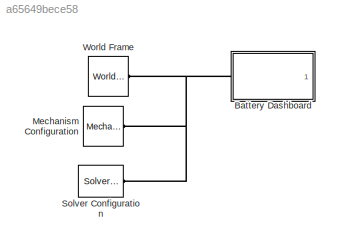
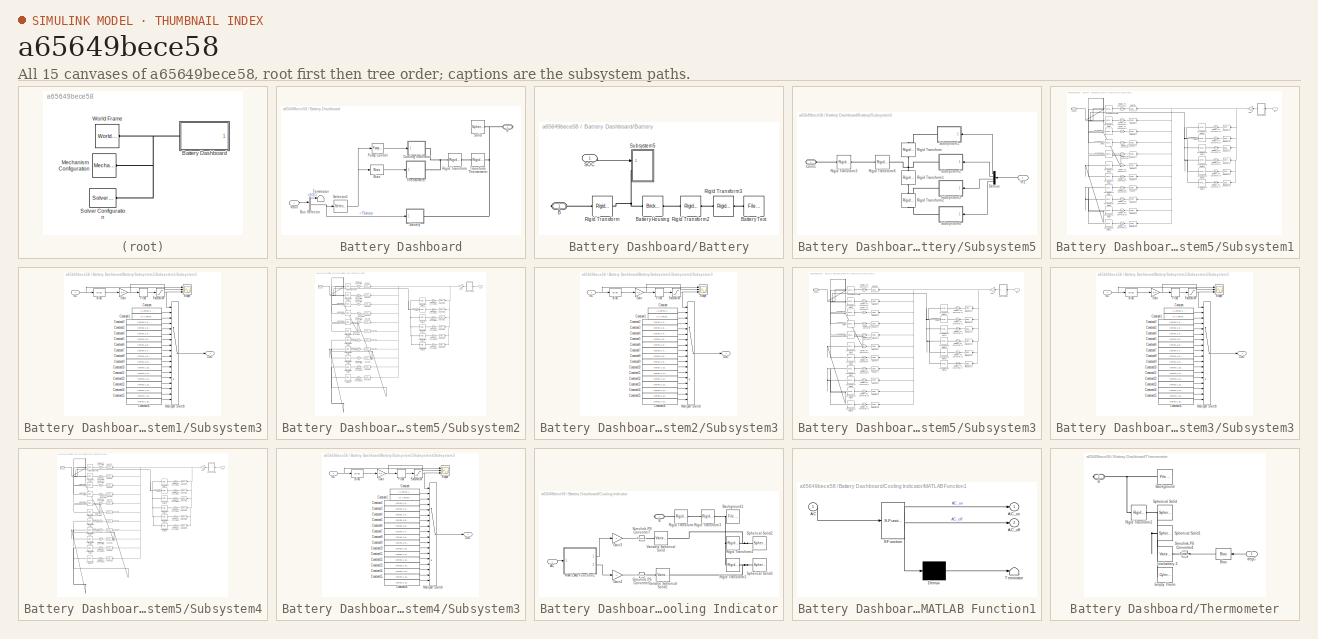
[diagram: thumbnail index - all 15 canvases of the model, root first then tree order]
MODEL slx_a65649bece58
KIND model
CONFIG AbsTol = auto
CONFIG EnableMultiTasking = off
CONFIG FixedStep = auto
CONFIG MaxStep = auto
CONFIG MinStep = auto
CONFIG RelTol = 1e-3
CONFIG SampleTimeConstraint = Unconstrained
CONFIG SolverName = VariableStepAuto
CONFIG StartTime = 0.0
CONFIG StopTime = 10.0
BLOCK [SubSystem] Battery Dashboard
  Ports = [1, 0, 0, 0, 0, 0, 1]
  RequestExecContextInheritance = off
BLOCK [SubSystem] Battery Dashboard/Battery
  Ports = [1, 0, 0, 0, 0, 0, 1]
  RequestExecContextInheritance = off
BLOCK [PMIOPort] Battery Dashboard/Battery/B
  Side = Right
BLOCK [Reference] Battery Dashboard/Battery/Battery Housing  REF=sm_lib/Body Elements/Brick Solid
  Ports = [0, 0, 0, 0, 0, 1, 1]
  SourceBlock = sm_lib/Body Elements/Brick Solid
  SourceProductBaseCode = MS
  SourceType = Brick Solid
BLOCK [Reference] Battery Dashboard/Battery/Battery Text  REF=sm_lib/Body Elements/File Solid
  Ports = [0, 0, 0, 0, 0, 0, 1]
  SourceBlock = sm_lib/Body Elements/File Solid
  SourceProductBaseCode = MS
  SourceType = File Solid
BLOCK [Reference] Battery Dashboard/Battery/Rigid Transform  REF=sm_lib/Frames and
Transforms/Rigid
Transform
  Ports = [0, 0, 0, 0, 0, 1, 1]
  SourceBlock = sm_lib/Frames and\nTransforms/Rigid\nTransform
  SourceProductBaseCode = MS
  SourceType = Rigid\nTransform
BLOCK [Reference] Battery Dashboard/Battery/Rigid Transform2  REF=sm_lib/Frames and
Transforms/Rigid
Transform
  Ports = [0, 0, 0, 0, 0, 1, 1]
  SourceBlock = sm_lib/Frames and\nTransforms/Rigid\nTransform
  SourceProductBaseCode = MS
  SourceType = Rigid\nTransform
BLOCK [Reference] Battery Dashboard/Battery/Rigid Transform3  REF=sm_lib/Frames and
Transforms/Rigid
Transform
  Ports = [0, 0, 0, 0, 0, 1, 1]
  SourceBlock = sm_lib/Frames and\nTransforms/Rigid\nTransform
  SourceProductBaseCode = MS
  SourceType = Rigid\nTransform
BLOCK [Inport] Battery Dashboard/Battery/SOC
BLOCK [SubSystem] Battery Dashboard/Battery/Subsystem5
  Ports = [1, 0, 0, 0, 0, 1]
  RequestExecContextInheritance = off
BLOCK [PMIOPort] Battery Dashboard/Battery/Subsystem5/Conn1
  Side = Left
BLOCK [Demux] Battery Dashboard/Battery/Subsystem5/Demux
  Ports = [1, 4]
BLOCK [Inport] Battery Dashboard/Battery/Subsystem5/In1
BLOCK [Reference] Battery Dashboard/Battery/Subsystem5/Rigid Transform  REF=sm_lib/Frames and
Transforms/Rigid
Transform
  NameLocation = left
  Ports = [0, 0, 0, 0, 0, 1, 1]
  SourceBlock = sm_lib/Frames and\nTransforms/Rigid\nTransform
  SourceProductBaseCode = MS
  SourceType = Rigid\nTransform
BLOCK [Reference] Battery Dashboard/Battery/Subsystem5/Rigid Transform1  REF=sm_lib/Frames and
Transforms/Rigid
Transform
  NameLocation = left
  Ports = [0, 0, 0, 0, 0, 1, 1]
  SourceBlock = sm_lib/Frames and\nTransforms/Rigid\nTransform
  SourceProductBaseCode = MS
  SourceType = Rigid\nTransform
BLOCK [Reference] Battery Dashboard/Battery/Subsystem5/Rigid Transform2  REF=sm_lib/Frames and
Transforms/Rigid
Transform
  NameLocation = left
  Ports = [0, 0, 0, 0, 0, 1, 1]
  SourceBlock = sm_lib/Frames and\nTransforms/Rigid\nTransform
  SourceProductBaseCode = MS
  SourceType = Rigid\nTransform
BLOCK [Reference] Battery Dashboard/Battery/Subsystem5/Rigid Transform3  REF=sm_lib/Frames and
Transforms/Rigid
Transform
  Ports = [0, 0, 0, 0, 0, 1, 1]
  SourceBlock = sm_lib/Frames and\nTransforms/Rigid\nTransform
  SourceProductBaseCode = MS
  SourceType = Rigid\nTransform
BLOCK [Reference] Battery Dashboard/Battery/Subsystem5/Rigid Transform6  REF=sm_lib/Frames and
Transforms/Rigid
Transform
  Ports = [0, 0, 0, 0, 0, 1, 1]
  SourceBlock = sm_lib/Frames and\nTransforms/Rigid\nTransform
  SourceProductBaseCode = MS
  SourceType = Rigid\nTransform
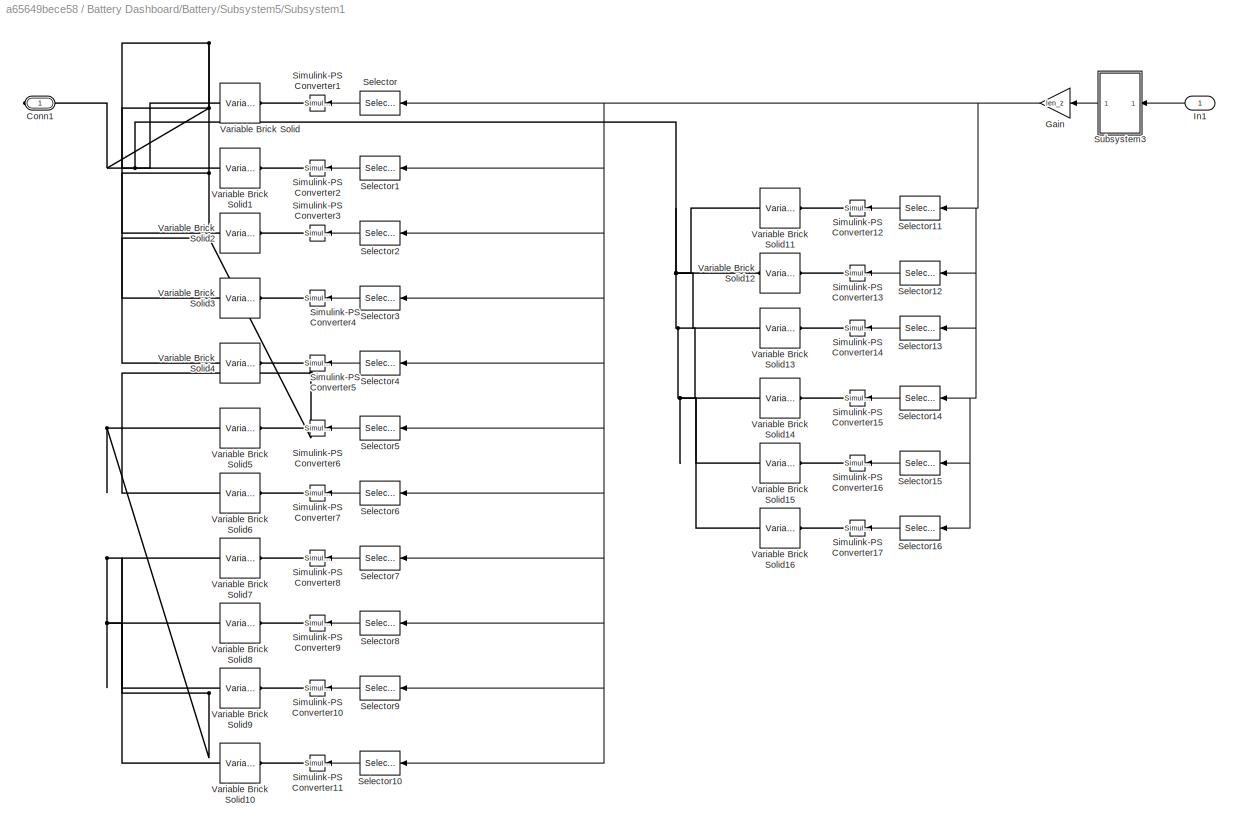
BLOCK [SubSystem] Battery Dashboard/Battery/Subsystem5/Subsystem1
  Ports = [1, 0, 0, 0, 0, 0, 1]
  RequestExecContextInheritance = off
BLOCK [PMIOPort] Battery Dashboard/Battery/Subsystem5/Subsystem1/Conn1
  Side = Right
BLOCK [Gain] Battery Dashboard/Battery/Subsystem5/Subsystem1/Gain
  Gain = len_z
BLOCK [Inport] Battery Dashboard/Battery/Subsystem5/Subsystem1/In1
BLOCK [Selector] Battery Dashboard/Battery/Subsystem5/Subsystem1/Selector
  AttributesFormatString = %<Indices>
  IndexOptions = Index vector (dialog)
  Indices = [1]
  InputPortWidth = numincr
  OutputSizes = 1
  Ports = [1, 1]
BLOCK [Selector] Battery Dashboard/Battery/Subsystem5/Subsystem1/Selector1
  AttributesFormatString = %<Indices>
  IndexOptions = Index vector (dialog)
  Indices = [2]
  InputPortWidth = numincr
  OutputSizes = 1
  Ports = [1, 1]
BLOCK [Selector] Battery Dashboard/Battery/Subsystem5/Subsystem1/Selector10
  AttributesFormatString = %<Indices>
  IndexOptions = Index vector (dialog)
  Indices = [11]
  InputPortWidth = numincr
  OutputSizes = 1
  Ports = [1, 1]
BLOCK [Selector] Battery Dashboard/Battery/Subsystem5/Subsystem1/Selector11
  AttributesFormatString = %<Indices>
  IndexOptions = Index vector (dialog)
  Indices = [12]
  InputPortWidth = numincr
  OutputSizes = 1
  Ports = [1, 1]
BLOCK [Selector] Battery Dashboard/Battery/Subsystem5/Subsystem1/Selector12
  AttributesFormatString = %<Indices>
  IndexOptions = Index vector (dialog)
  Indices = [13]
  InputPortWidth = numincr
  OutputSizes = 1
  Ports = [1, 1]
BLOCK [Selector] Battery Dashboard/Battery/Subsystem5/Subsystem1/Selector13
  AttributesFormatString = %<Indices>
  IndexOptions = Index vector (dialog)
  Indices = [14]
  InputPortWidth = numincr
  OutputSizes = 1
  Ports = [1, 1]
BLOCK [Selector] Battery Dashboard/Battery/Subsystem5/Subsystem1/Selector14
  AttributesFormatString = %<Indices>
  IndexOptions = Index vector (dialog)
  Indices = [15]
  InputPortWidth = numincr
  OutputSizes = 1
  Ports = [1, 1]
BLOCK [Selector] Battery Dashboard/Battery/Subsystem5/Subsystem1/Selector15
  AttributesFormatString = %<Indices>
  IndexOptions = Index vector (dialog)
  Indices = [16]
  InputPortWidth = numincr
  OutputSizes = 1
  Ports = [1, 1]
BLOCK [Selector] Battery Dashboard/Battery/Subsystem5/Subsystem1/Selector16
  AttributesFormatString = %<Indices>
  IndexOptions = Index vector (dialog)
  Indices = [17]
  InputPortWidth = numincr
  OutputSizes = 1
  Ports = [1, 1]
BLOCK [Selector] Battery Dashboard/Battery/Subsystem5/Subsystem1/Selector2
  AttributesFormatString = %<Indices>
  IndexOptions = Index vector (dialog)
  Indices = [3]
  InputPortWidth = numincr
  OutputSizes = 1
  Ports = [1, 1]
BLOCK [Selector] Battery Dashboard/Battery/Subsystem5/Subsystem1/Selector3
  AttributesFormatString = %<Indices>
  IndexOptions = Index vector (dialog)
  Indices = [4]
  InputPortWidth = numincr
  OutputSizes = 1
  Ports = [1, 1]
BLOCK [Selector] Battery Dashboard/Battery/Subsystem5/Subsystem1/Selector4
  AttributesFormatString = %<Indices>
  IndexOptions = Index vector (dialog)
  Indices = [5]
  InputPortWidth = numincr
  OutputSizes = 1
  Ports = [1, 1]
BLOCK [Selector] Battery Dashboard/Battery/Subsystem5/Subsystem1/Selector5
  AttributesFormatString = %<Indices>
  IndexOptions = Index vector (dialog)
  Indices = [6]
  InputPortWidth = numincr
  OutputSizes = 1
  Ports = [1, 1]
BLOCK [Selector] Battery Dashboard/Battery/Subsystem5/Subsystem1/Selector6
  AttributesFormatString = %<Indices>
  IndexOptions = Index vector (dialog)
  Indices = [7]
  InputPortWidth = numincr
  OutputSizes = 1
  Ports = [1, 1]
BLOCK [Selector] Battery Dashboard/Battery/Subsystem5/Subsystem1/Selector7
  AttributesFormatString = %<Indices>
  IndexOptions = Index vector (dialog)
  Indices = [8]
  InputPortWidth = numincr
  OutputSizes = 1
  Ports = [1, 1]
BLOCK [Selector] Battery Dashboard/Battery/Subsystem5/Subsystem1/Selector8
  AttributesFormatString = %<Indices>
  IndexOptions = Index vector (dialog)
  Indices = [9]
  InputPortWidth = numincr
  OutputSizes = 1
  Ports = [1, 1]
BLOCK [Selector] Battery Dashboard/Battery/Subsystem5/Subsystem1/Selector9
  AttributesFormatString = %<Indices>
  IndexOptions = Index vector (dialog)
  Indices = [10]
  InputPortWidth = numincr
  OutputSizes = 1
  Ports = [1, 1]
BLOCK [Reference] Battery Dashboard/Battery/Subsystem5/Subsystem1/Simulink-PS Converter1  REF=nesl_utility/Simulink-PS
Converter
  Ports = [1, 0, 0, 0, 0, 0, 1]
  SourceBlock = nesl_utility/Simulink-PS\nConverter
  SourceProductBaseCode = SS,PW,VE
  SourceType = Simulink-PS\nConverter
BLOCK [Reference] Battery Dashboard/Battery/Subsystem5/Subsystem1/Simulink-PS Converter10  REF=nesl_utility/Simulink-PS
Converter
  Ports = [1, 0, 0, 0, 0, 0, 1]
  SourceBlock = nesl_utility/Simulink-PS\nConverter
  SourceProductBaseCode = SS,PW,VE
  SourceType = Simulink-PS\nConverter
BLOCK [Reference] Battery Dashboard/Battery/Subsystem5/Subsystem1/Simulink-PS Converter11  REF=nesl_utility/Simulink-PS
Converter
  Ports = [1, 0, 0, 0, 0, 0, 1]
  SourceBlock = nesl_utility/Simulink-PS\nConverter
  SourceProductBaseCode = SS,PW,VE
  SourceType = Simulink-PS\nConverter
BLOCK [Reference] Battery Dashboard/Battery/Subsystem5/Subsystem1/Simulink-PS Converter12  REF=nesl_utility/Simulink-PS
Converter
  Ports = [1, 0, 0, 0, 0, 0, 1]
  SourceBlock = nesl_utility/Simulink-PS\nConverter
  SourceProductBaseCode = SS,PW,VE
  SourceType = Simulink-PS\nConverter
BLOCK [Reference] Battery Dashboard/Battery/Subsystem5/Subsystem1/Simulink-PS Converter13  REF=nesl_utility/Simulink-PS
Converter
  Ports = [1, 0, 0, 0, 0, 0, 1]
  SourceBlock = nesl_utility/Simulink-PS\nConverter
  SourceProductBaseCode = SS,PW,VE
  SourceType = Simulink-PS\nConverter
BLOCK [Reference] Battery Dashboard/Battery/Subsystem5/Subsystem1/Simulink-PS Converter14  REF=nesl_utility/Simulink-PS
Converter
  Ports = [1, 0, 0, 0, 0, 0, 1]
  SourceBlock = nesl_utility/Simulink-PS\nConverter
  SourceProductBaseCode = SS,PW,VE
  SourceType = Simulink-PS\nConverter
BLOCK [Reference] Battery Dashboard/Battery/Subsystem5/Subsystem1/Simulink-PS Converter15  REF=nesl_utility/Simulink-PS
Converter
  Ports = [1, 0, 0, 0, 0, 0, 1]
  SourceBlock = nesl_utility/Simulink-PS\nConverter
  SourceProductBaseCode = SS,PW,VE
  SourceType = Simulink-PS\nConverter
BLOCK [Reference] Battery Dashboard/Battery/Subsystem5/Subsystem1/Simulink-PS Converter16  REF=nesl_utility/Simulink-PS
Converter
  Ports = [1, 0, 0, 0, 0, 0, 1]
  SourceBlock = nesl_utility/Simulink-PS\nConverter
  SourceProductBaseCode = SS,PW,VE
  SourceType = Simulink-PS\nConverter
BLOCK [Reference] Battery Dashboard/Battery/Subsystem5/Subsystem1/Simulink-PS Converter17  REF=nesl_utility/Simulink-PS
Converter
  Ports = [1, 0, 0, 0, 0, 0, 1]
  SourceBlock = nesl_utility/Simulink-PS\nConverter
  SourceProductBaseCode = SS,PW,VE
  SourceType = Simulink-PS\nConverter
BLOCK [Reference] Battery Dashboard/Battery/Subsystem5/Subsystem1/Simulink-PS Converter2  REF=nesl_utility/Simulink-PS
Converter
  Ports = [1, 0, 0, 0, 0, 0, 1]
  SourceBlock = nesl_utility/Simulink-PS\nConverter
  SourceProductBaseCode = SS,PW,VE
  SourceType = Simulink-PS\nConverter
BLOCK [Reference] Battery Dashboard/Battery/Subsystem5/Subsystem1/Simulink-PS Converter3  REF=nesl_utility/Simulink-PS
Converter
  Ports = [1, 0, 0, 0, 0, 0, 1]
  SourceBlock = nesl_utility/Simulink-PS\nConverter
  SourceProductBaseCode = SS,PW,VE
  SourceType = Simulink-PS\nConverter
BLOCK [Reference] Battery Dashboard/Battery/Subsystem5/Subsystem1/Simulink-PS Converter4  REF=nesl_utility/Simulink-PS
Converter
  Ports = [1, 0, 0, 0, 0, 0, 1]
  SourceBlock = nesl_utility/Simulink-PS\nConverter
  SourceProductBaseCode = SS,PW,VE
  SourceType = Simulink-PS\nConverter
BLOCK [Reference] Battery Dashboard/Battery/Subsystem5/Subsystem1/Simulink-PS Converter5  REF=nesl_utility/Simulink-PS
Converter
  Ports = [1, 0, 0, 0, 0, 0, 1]
  SourceBlock = nesl_utility/Simulink-PS\nConverter
  SourceProductBaseCode = SS,PW,VE
  SourceType = Simulink-PS\nConverter
BLOCK [Reference] Battery Dashboard/Battery/Subsystem5/Subsystem1/Simulink-PS Converter6  REF=nesl_utility/Simulink-PS
Converter
  Ports = [1, 0, 0, 0, 0, 0, 1]
  SourceBlock = nesl_utility/Simulink-PS\nConverter
  SourceProductBaseCode = SS,PW,VE
  SourceType = Simulink-PS\nConverter
BLOCK [Reference] Battery Dashboard/Battery/Subsystem5/Subsystem1/Simulink-PS Converter7  REF=nesl_utility/Simulink-PS
Converter
  Ports = [1, 0, 0, 0, 0, 0, 1]
  SourceBlock = nesl_utility/Simulink-PS\nConverter
  SourceProductBaseCode = SS,PW,VE
  SourceType = Simulink-PS\nConverter
BLOCK [Reference] Battery Dashboard/Battery/Subsystem5/Subsystem1/Simulink-PS Converter8  REF=nesl_utility/Simulink-PS
Converter
  Ports = [1, 0, 0, 0, 0, 0, 1]
  SourceBlock = nesl_utility/Simulink-PS\nConverter
  SourceProductBaseCode = SS,PW,VE
  SourceType = Simulink-PS\nConverter
BLOCK [Reference] Battery Dashboard/Battery/Subsystem5/Subsystem1/Simulink-PS Converter9  REF=nesl_utility/Simulink-PS
Converter
  Ports = [1, 0, 0, 0, 0, 0, 1]
  SourceBlock = nesl_utility/Simulink-PS\nConverter
  SourceProductBaseCode = SS,PW,VE
  SourceType = Simulink-PS\nConverter
BLOCK [SubSystem] Battery Dashboard/Battery/Subsystem5/Subsystem1/Subsystem3
  Ports = [1, 1]
  RequestExecContextInheritance = off
BLOCK [Bias] Battery Dashboard/Battery/Subsystem5/Subsystem1/Subsystem3/Bias
  Bias = -298
  SaturateOnIntegerOverflow = off
BLOCK [Constant] Battery Dashboard/Battery/Subsystem5/Subsystem1/Subsystem3/Constant
  Value = [1 zeros(1,16)]
BLOCK [Constant] Battery Dashboard/Battery/Subsystem5/Subsystem1/Subsystem3/Constant1
  Value = [0 1 zeros(1,15)]
BLOCK [Constant] Battery Dashboard/Battery/Subsystem5/Subsystem1/Subsystem3/Constant10
  Value = [zeros(1,10) 1 zeros(1,6)]
BLOCK [Constant] Battery Dashboard/Battery/Subsystem5/Subsystem1/Subsystem3/Constant11
  Value = [zeros(1,11) 1 zeros(1,5)]
BLOCK [Constant] Battery Dashboard/Battery/Subsystem5/Subsystem1/Subsystem3/Constant12
  Value = [zeros(1,12) 1 zeros(1,4)]
BLOCK [Constant] Battery Dashboard/Battery/Subsystem5/Subsystem1/Subsystem3/Constant13
  Value = [zeros(1,13) 1 zeros(1,3)]
BLOCK [Constant] Battery Dashboard/Battery/Subsystem5/Subsystem1/Subsystem3/Constant14
  Value = [zeros(1,14) 1 zeros(1,2)]
BLOCK [Constant] Battery Dashboard/Battery/Subsystem5/Subsystem1/Subsystem3/Constant15
  Value = [zeros(1,15) 1 zeros(1,1)]
BLOCK [Constant] Battery Dashboard/Battery/Subsystem5/Subsystem1/Subsystem3/Constant16
  Value = [zeros(1,16) 1 ]
BLOCK [Constant] Battery Dashboard/Battery/Subsystem5/Subsystem1/Subsystem3/Constant2
  Value = [zeros(1,2) 1 zeros(1,14)]
BLOCK [Constant] Battery Dashboard/Battery/Subsystem5/Subsystem1/Subsystem3/Constant3
  Value = [zeros(1,3) 1 zeros(1,13)]
BLOCK [Constant] Battery Dashboard/Battery/Subsystem5/Subsystem1/Subsystem3/Constant4
  Value = [zeros(1,4) 1 zeros(1,12)]
BLOCK [Constant] Battery Dashboard/Battery/Subsystem5/Subsystem1/Subsystem3/Constant5
  Value = [zeros(1,5) 1 zeros(1,11)]
BLOCK [Constant] Battery Dashboard/Battery/Subsystem5/Subsystem1/Subsystem3/Constant6
  Value = [zeros(1,6) 1 zeros(1,10)]
BLOCK [Constant] Battery Dashboard/Battery/Subsystem5/Subsystem1/Subsystem3/Constant7
  Value = [zeros(1,7) 1 zeros(1,9)]
BLOCK [Constant] Battery Dashboard/Battery/Subsystem5/Subsystem1/Subsystem3/Constant8
  Value = [zeros(1,8) 1 zeros(1,8)]
BLOCK [Constant] Battery Dashboard/Battery/Subsystem5/Subsystem1/Subsystem3/Constant9
  Value = [zeros(1,9) 1 zeros(1,7)]
BLOCK [Rounding] Battery Dashboard/Battery/Subsystem5/Subsystem1/Subsystem3/Floor
  Operator = round
BLOCK [Gain] Battery Dashboard/Battery/Subsystem5/Subsystem1/Subsystem3/Gain
  Gain = 1/2
BLOCK [Inport] Battery Dashboard/Battery/Subsystem5/Subsystem1/Subsystem3/In1
BLOCK [MultiPortSwitch] Battery Dashboard/Battery/Subsystem5/Subsystem1/Subsystem3/Multiport Switch
  DataPortOrder = Zero-based contiguous
  InputSameDT = off
  Inputs = 17
  Ports = [18, 1]
  SaturateOnIntegerOverflow = off
  zeroidx = on
BLOCK [Outport] Battery Dashboard/Battery/Subsystem5/Subsystem1/Subsystem3/Out1
  VectorParamsAs1DForOutWhenUnconnected = off
BLOCK [Saturate] Battery Dashboard/Battery/Subsystem5/Subsystem1/Subsystem3/Saturation
  LowerLimit = 0
  UpperLimit = 16
BLOCK [Scope] Battery Dashboard/Battery/Subsystem5/Subsystem1/Subsystem3/Scope
  Floating = off
  NumInputPorts = 3
  Ports = [3]
  ScopeSpecificationString = Simulink.scopes.TimeScopeBlockCfg('CurrentConfiguration', extmgr.ConfigurationSet(extmgr.Configuration('Core','General UI',true),extmgr.Configuration('Core','Source UI',true),extmgr.Configuration('Sources','WiredSimulink',true,'DataLoggingSaveFormat','Array','DataLoggingDecimation','1','DataLoggingDecimateData',true),extmgr.Configuration('Visuals','Time Domain',true,'SerializedDisplays',{struct('M...<+2282ch>
BLOCK [Reference] Battery Dashboard/Battery/Subsystem5/Subsystem1/Variable Brick Solid  REF=sm_lib/Body Elements/Variable Mass/Variable
Brick Solid
  AttributesFormatString = %<GraphicDiffuseColor>
  Ports = [0, 0, 0, 0, 0, 1, 1]
  SourceBlock = sm_lib/Body Elements/Variable Mass/Variable\nBrick Solid
  SourceProductBaseCode = MS
  SourceType = Variable\nBrick Solid
BLOCK [Reference] Battery Dashboard/Battery/Subsystem5/Subsystem1/Variable Brick Solid1  REF=sm_lib/Body Elements/Variable Mass/Variable
Brick Solid
  AttributesFormatString = %<GraphicDiffuseColor>
  Ports = [0, 0, 0, 0, 0, 1, 1]
  SourceBlock = sm_lib/Body Elements/Variable Mass/Variable\nBrick Solid
  SourceProductBaseCode = MS
  SourceType = Variable\nBrick Solid
BLOCK [Reference] Battery Dashboard/Battery/Subsystem5/Subsystem1/Variable Brick Solid10  REF=sm_lib/Body Elements/Variable Mass/Variable
Brick Solid
  AttributesFormatString = %<GraphicDiffuseColor>
  Ports = [0, 0, 0, 0, 0, 1, 1]
  SourceBlock = sm_lib/Body Elements/Variable Mass/Variable\nBrick Solid
  SourceProductBaseCode = MS
  SourceType = Variable\nBrick Solid
BLOCK [Reference] Battery Dashboard/Battery/Subsystem5/Subsystem1/Variable Brick Solid11  REF=sm_lib/Body Elements/Variable Mass/Variable
Brick Solid
  AttributesFormatString = %<GraphicDiffuseColor>
  Ports = [0, 0, 0, 0, 0, 1, 1]
  SourceBlock = sm_lib/Body Elements/Variable Mass/Variable\nBrick Solid
  SourceProductBaseCode = MS
  SourceType = Variable\nBrick Solid
BLOCK [Reference] Battery Dashboard/Battery/Subsystem5/Subsystem1/Variable Brick Solid12  REF=sm_lib/Body Elements/Variable Mass/Variable
Brick Solid
  AttributesFormatString = %<GraphicDiffuseColor>
  Ports = [0, 0, 0, 0, 0, 1, 1]
  SourceBlock = sm_lib/Body Elements/Variable Mass/Variable\nBrick Solid
  SourceProductBaseCode = MS
  SourceType = Variable\nBrick Solid
BLOCK [Reference] Battery Dashboard/Battery/Subsystem5/Subsystem1/Variable Brick Solid13  REF=sm_lib/Body Elements/Variable Mass/Variable
Brick Solid
  AttributesFormatString = %<GraphicDiffuseColor>
  Ports = [0, 0, 0, 0, 0, 1, 1]
  SourceBlock = sm_lib/Body Elements/Variable Mass/Variable\nBrick Solid
  SourceProductBaseCode = MS
  SourceType = Variable\nBrick Solid
BLOCK [Reference] Battery Dashboard/Battery/Subsystem5/Subsystem1/Variable Brick Solid14  REF=sm_lib/Body Elements/Variable Mass/Variable
Brick Solid
  AttributesFormatString = %<GraphicDiffuseColor>
  Ports = [0, 0, 0, 0, 0, 1, 1]
  SourceBlock = sm_lib/Body Elements/Variable Mass/Variable\nBrick Solid
  SourceProductBaseCode = MS
  SourceType = Variable\nBrick Solid
BLOCK [Reference] Battery Dashboard/Battery/Subsystem5/Subsystem1/Variable Brick Solid15  REF=sm_lib/Body Elements/Variable Mass/Variable
Brick Solid
  AttributesFormatString = %<GraphicDiffuseColor>
  Ports = [0, 0, 0, 0, 0, 1, 1]
  SourceBlock = sm_lib/Body Elements/Variable Mass/Variable\nBrick Solid
  SourceProductBaseCode = MS
  SourceType = Variable\nBrick Solid
BLOCK [Reference] Battery Dashboard/Battery/Subsystem5/Subsystem1/Variable Brick Solid16  REF=sm_lib/Body Elements/Variable Mass/Variable
Brick Solid
  AttributesFormatString = %<GraphicDiffuseColor>
  Ports = [0, 0, 0, 0, 0, 1, 1]
  SourceBlock = sm_lib/Body Elements/Variable Mass/Variable\nBrick Solid
  SourceProductBaseCode = MS
  SourceType = Variable\nBrick Solid
BLOCK [Reference] Battery Dashboard/Battery/Subsystem5/Subsystem1/Variable Brick Solid2  REF=sm_lib/Body Elements/Variable Mass/Variable
Brick Solid
  AttributesFormatString = %<GraphicDiffuseColor>
  Ports = [0, 0, 0, 0, 0, 1, 1]
  SourceBlock = sm_lib/Body Elements/Variable Mass/Variable\nBrick Solid
  SourceProductBaseCode = MS
  SourceType = Variable\nBrick Solid
BLOCK [Reference] Battery Dashboard/Battery/Subsystem5/Subsystem1/Variable Brick Solid3  REF=sm_lib/Body Elements/Variable Mass/Variable
Brick Solid
  AttributesFormatString = %<GraphicDiffuseColor>
  Ports = [0, 0, 0, 0, 0, 1, 1]
  SourceBlock = sm_lib/Body Elements/Variable Mass/Variable\nBrick Solid
  SourceProductBaseCode = MS
  SourceType = Variable\nBrick Solid
BLOCK [Reference] Battery Dashboard/Battery/Subsystem5/Subsystem1/Variable Brick Solid4  REF=sm_lib/Body Elements/Variable Mass/Variable
Brick Solid
  AttributesFormatString = %<GraphicDiffuseColor>
  Ports = [0, 0, 0, 0, 0, 1, 1]
  SourceBlock = sm_lib/Body Elements/Variable Mass/Variable\nBrick Solid
  SourceProductBaseCode = MS
  SourceType = Variable\nBrick Solid
BLOCK [Reference] Battery Dashboard/Battery/Subsystem5/Subsystem1/Variable Brick Solid5  REF=sm_lib/Body Elements/Variable Mass/Variable
Brick Solid
  AttributesFormatString = %<GraphicDiffuseColor>
  Ports = [0, 0, 0, 0, 0, 1, 1]
  SourceBlock = sm_lib/Body Elements/Variable Mass/Variable\nBrick Solid
  SourceProductBaseCode = MS
  SourceType = Variable\nBrick Solid
BLOCK [Reference] Battery Dashboard/Battery/Subsystem5/Subsystem1/Variable Brick Solid6  REF=sm_lib/Body Elements/Variable Mass/Variable
Brick Solid
  AttributesFormatString = %<GraphicDiffuseColor>
  Ports = [0, 0, 0, 0, 0, 1, 1]
  SourceBlock = sm_lib/Body Elements/Variable Mass/Variable\nBrick Solid
  SourceProductBaseCode = MS
  SourceType = Variable\nBrick Solid
BLOCK [Reference] Battery Dashboard/Battery/Subsystem5/Subsystem1/Variable Brick Solid7  REF=sm_lib/Body Elements/Variable Mass/Variable
Brick Solid
  AttributesFormatString = %<GraphicDiffuseColor>
  Ports = [0, 0, 0, 0, 0, 1, 1]
  SourceBlock = sm_lib/Body Elements/Variable Mass/Variable\nBrick Solid
  SourceProductBaseCode = MS
  SourceType = Variable\nBrick Solid
BLOCK [Reference] Battery Dashboard/Battery/Subsystem5/Subsystem1/Variable Brick Solid8  REF=sm_lib/Body Elements/Variable Mass/Variable
Brick Solid
  AttributesFormatString = %<GraphicDiffuseColor>
  Ports = [0, 0, 0, 0, 0, 1, 1]
  SourceBlock = sm_lib/Body Elements/Variable Mass/Variable\nBrick Solid
  SourceProductBaseCode = MS
  SourceType = Variable\nBrick Solid
BLOCK [Reference] Battery Dashboard/Battery/Subsystem5/Subsystem1/Variable Brick Solid9  REF=sm_lib/Body Elements/Variable Mass/Variable
Brick Solid
  AttributesFormatString = %<GraphicDiffuseColor>
  Ports = [0, 0, 0, 0, 0, 1, 1]
  SourceBlock = sm_lib/Body Elements/Variable Mass/Variable\nBrick Solid
  SourceProductBaseCode = MS
  SourceType = Variable\nBrick Solid
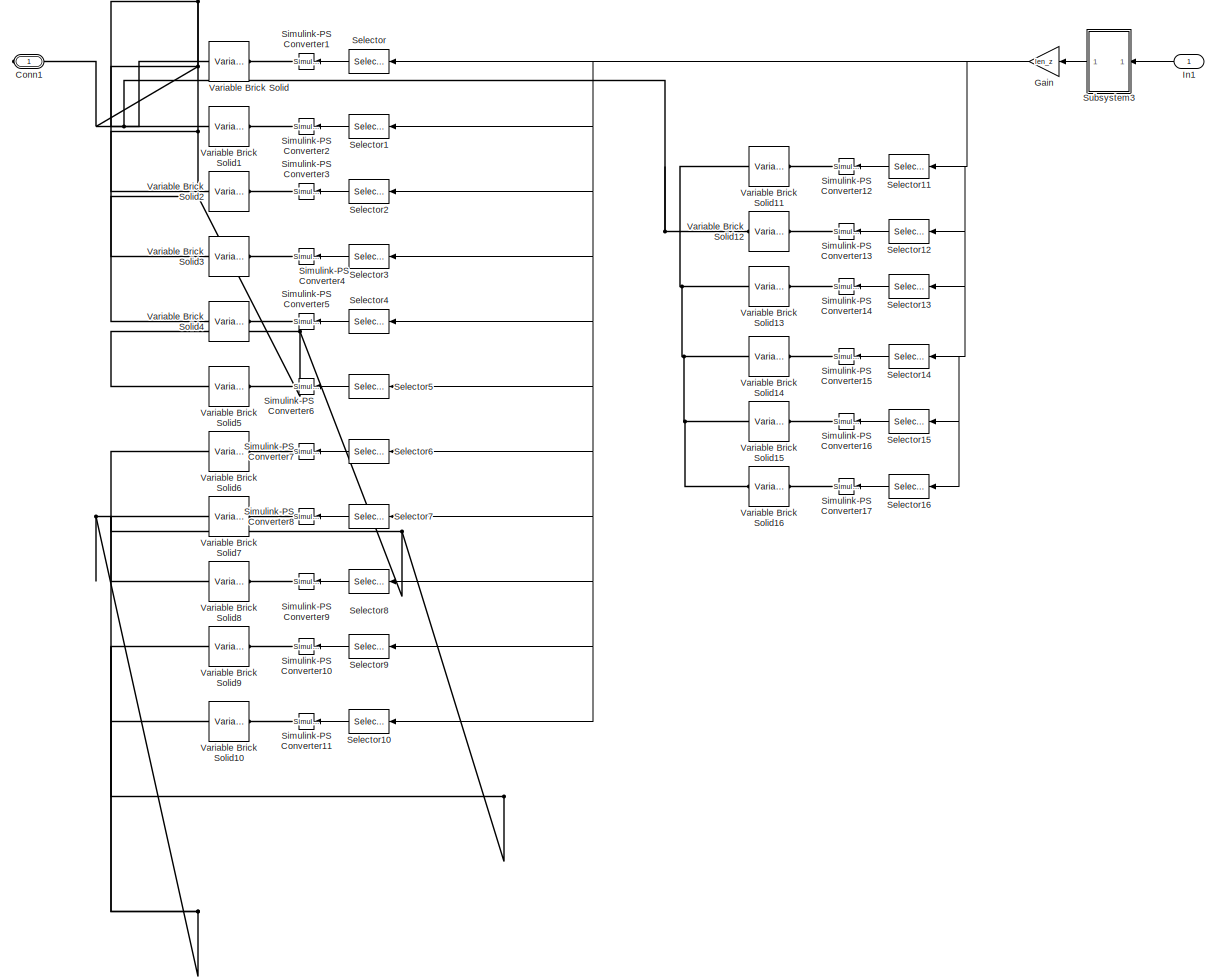
[diagram: Battery Dashboard/Battery/Subsystem5/Subsystem2 - part 1/1, most of the canvas]
BLOCK [SubSystem] Battery Dashboard/Battery/Subsystem5/Subsystem2
  Ports = [1, 0, 0, 0, 0, 0, 1]
  RequestExecContextInheritance = off
BLOCK [PMIOPort] Battery Dashboard/Battery/Subsystem5/Subsystem2/Conn1
  Side = Right
BLOCK [Gain] Battery Dashboard/Battery/Subsystem5/Subsystem2/Gain
  Gain = len_z
BLOCK [Inport] Battery Dashboard/Battery/Subsystem5/Subsystem2/In1
BLOCK [Selector] Battery Dashboard/Battery/Subsystem5/Subsystem2/Selector
  AttributesFormatString = %<Indices>
  IndexOptions = Index vector (dialog)
  Indices = [1]
  InputPortWidth = numincr
  OutputSizes = 1
  Ports = [1, 1]
BLOCK [Selector] Battery Dashboard/Battery/Subsystem5/Subsystem2/Selector1
  AttributesFormatString = %<Indices>
  IndexOptions = Index vector (dialog)
  Indices = [2]
  InputPortWidth = numincr
  OutputSizes = 1
  Ports = [1, 1]
BLOCK [Selector] Battery Dashboard/Battery/Subsystem5/Subsystem2/Selector10
  AttributesFormatString = %<Indices>
  IndexOptions = Index vector (dialog)
  Indices = [11]
  InputPortWidth = numincr
  OutputSizes = 1
  Ports = [1, 1]
BLOCK [Selector] Battery Dashboard/Battery/Subsystem5/Subsystem2/Selector11
  AttributesFormatString = %<Indices>
  IndexOptions = Index vector (dialog)
  Indices = [12]
  InputPortWidth = numincr
  OutputSizes = 1
  Ports = [1, 1]
BLOCK [Selector] Battery Dashboard/Battery/Subsystem5/Subsystem2/Selector12
  AttributesFormatString = %<Indices>
  IndexOptions = Index vector (dialog)
  Indices = [13]
  InputPortWidth = numincr
  OutputSizes = 1
  Ports = [1, 1]
BLOCK [Selector] Battery Dashboard/Battery/Subsystem5/Subsystem2/Selector13
  AttributesFormatString = %<Indices>
  IndexOptions = Index vector (dialog)
  Indices = [14]
  InputPortWidth = numincr
  OutputSizes = 1
  Ports = [1, 1]
BLOCK [Selector] Battery Dashboard/Battery/Subsystem5/Subsystem2/Selector14
  AttributesFormatString = %<Indices>
  IndexOptions = Index vector (dialog)
  Indices = [15]
  InputPortWidth = numincr
  OutputSizes = 1
  Ports = [1, 1]
BLOCK [Selector] Battery Dashboard/Battery/Subsystem5/Subsystem2/Selector15
  AttributesFormatString = %<Indices>
  IndexOptions = Index vector (dialog)
  Indices = [16]
  InputPortWidth = numincr
  OutputSizes = 1
  Ports = [1, 1]
BLOCK [Selector] Battery Dashboard/Battery/Subsystem5/Subsystem2/Selector16
  AttributesFormatString = %<Indices>
  IndexOptions = Index vector (dialog)
  Indices = [17]
  InputPortWidth = numincr
  OutputSizes = 1
  Ports = [1, 1]
BLOCK [Selector] Battery Dashboard/Battery/Subsystem5/Subsystem2/Selector2
  AttributesFormatString = %<Indices>
  IndexOptions = Index vector (dialog)
  Indices = [3]
  InputPortWidth = numincr
  OutputSizes = 1
  Ports = [1, 1]
BLOCK [Selector] Battery Dashboard/Battery/Subsystem5/Subsystem2/Selector3
  AttributesFormatString = %<Indices>
  IndexOptions = Index vector (dialog)
  Indices = [4]
  InputPortWidth = numincr
  OutputSizes = 1
  Ports = [1, 1]
BLOCK [Selector] Battery Dashboard/Battery/Subsystem5/Subsystem2/Selector4
  AttributesFormatString = %<Indices>
  IndexOptions = Index vector (dialog)
  Indices = [5]
  InputPortWidth = numincr
  OutputSizes = 1
  Ports = [1, 1]
BLOCK [Selector] Battery Dashboard/Battery/Subsystem5/Subsystem2/Selector5
  AttributesFormatString = %<Indices>
  IndexOptions = Index vector (dialog)
  Indices = [6]
  InputPortWidth = numincr
  OutputSizes = 1
  Ports = [1, 1]
BLOCK [Selector] Battery Dashboard/Battery/Subsystem5/Subsystem2/Selector6
  AttributesFormatString = %<Indices>
  IndexOptions = Index vector (dialog)
  Indices = [7]
  InputPortWidth = numincr
  OutputSizes = 1
  Ports = [1, 1]
BLOCK [Selector] Battery Dashboard/Battery/Subsystem5/Subsystem2/Selector7
  AttributesFormatString = %<Indices>
  IndexOptions = Index vector (dialog)
  Indices = [8]
  InputPortWidth = numincr
  OutputSizes = 1
  Ports = [1, 1]
BLOCK [Selector] Battery Dashboard/Battery/Subsystem5/Subsystem2/Selector8
  AttributesFormatString = %<Indices>
  IndexOptions = Index vector (dialog)
  Indices = [9]
  InputPortWidth = numincr
  OutputSizes = 1
  Ports = [1, 1]
BLOCK [Selector] Battery Dashboard/Battery/Subsystem5/Subsystem2/Selector9
  AttributesFormatString = %<Indices>
  IndexOptions = Index vector (dialog)
  Indices = [10]
  InputPortWidth = numincr
  OutputSizes = 1
  Ports = [1, 1]
BLOCK [Reference] Battery Dashboard/Battery/Subsystem5/Subsystem2/Simulink-PS Converter1  REF=nesl_utility/Simulink-PS
Converter
  Ports = [1, 0, 0, 0, 0, 0, 1]
  SourceBlock = nesl_utility/Simulink-PS\nConverter
  SourceProductBaseCode = SS,PW,VE
  SourceType = Simulink-PS\nConverter
BLOCK [Reference] Battery Dashboard/Battery/Subsystem5/Subsystem2/Simulink-PS Converter10  REF=nesl_utility/Simulink-PS
Converter
  Ports = [1, 0, 0, 0, 0, 0, 1]
  SourceBlock = nesl_utility/Simulink-PS\nConverter
  SourceProductBaseCode = SS,PW,VE
  SourceType = Simulink-PS\nConverter
BLOCK [Reference] Battery Dashboard/Battery/Subsystem5/Subsystem2/Simulink-PS Converter11  REF=nesl_utility/Simulink-PS
Converter
  Ports = [1, 0, 0, 0, 0, 0, 1]
  SourceBlock = nesl_utility/Simulink-PS\nConverter
  SourceProductBaseCode = SS,PW,VE
  SourceType = Simulink-PS\nConverter
BLOCK [Reference] Battery Dashboard/Battery/Subsystem5/Subsystem2/Simulink-PS Converter12  REF=nesl_utility/Simulink-PS
Converter
  Ports = [1, 0, 0, 0, 0, 0, 1]
  SourceBlock = nesl_utility/Simulink-PS\nConverter
  SourceProductBaseCode = SS,PW,VE
  SourceType = Simulink-PS\nConverter
BLOCK [Reference] Battery Dashboard/Battery/Subsystem5/Subsystem2/Simulink-PS Converter13  REF=nesl_utility/Simulink-PS
Converter
  Ports = [1, 0, 0, 0, 0, 0, 1]
  SourceBlock = nesl_utility/Simulink-PS\nConverter
  SourceProductBaseCode = SS,PW,VE
  SourceType = Simulink-PS\nConverter
BLOCK [Reference] Battery Dashboard/Battery/Subsystem5/Subsystem2/Simulink-PS Converter14  REF=nesl_utility/Simulink-PS
Converter
  Ports = [1, 0, 0, 0, 0, 0, 1]
  SourceBlock = nesl_utility/Simulink-PS\nConverter
  SourceProductBaseCode = SS,PW,VE
  SourceType = Simulink-PS\nConverter
BLOCK [Reference] Battery Dashboard/Battery/Subsystem5/Subsystem2/Simulink-PS Converter15  REF=nesl_utility/Simulink-PS
Converter
  Ports = [1, 0, 0, 0, 0, 0, 1]
  SourceBlock = nesl_utility/Simulink-PS\nConverter
  SourceProductBaseCode = SS,PW,VE
  SourceType = Simulink-PS\nConverter
BLOCK [Reference] Battery Dashboard/Battery/Subsystem5/Subsystem2/Simulink-PS Converter16  REF=nesl_utility/Simulink-PS
Converter
  Ports = [1, 0, 0, 0, 0, 0, 1]
  SourceBlock = nesl_utility/Simulink-PS\nConverter
  SourceProductBaseCode = SS,PW,VE
  SourceType = Simulink-PS\nConverter
BLOCK [Reference] Battery Dashboard/Battery/Subsystem5/Subsystem2/Simulink-PS Converter17  REF=nesl_utility/Simulink-PS
Converter
  Ports = [1, 0, 0, 0, 0, 0, 1]
  SourceBlock = nesl_utility/Simulink-PS\nConverter
  SourceProductBaseCode = SS,PW,VE
  SourceType = Simulink-PS\nConverter
BLOCK [Reference] Battery Dashboard/Battery/Subsystem5/Subsystem2/Simulink-PS Converter2  REF=nesl_utility/Simulink-PS
Converter
  Ports = [1, 0, 0, 0, 0, 0, 1]
  SourceBlock = nesl_utility/Simulink-PS\nConverter
  SourceProductBaseCode = SS,PW,VE
  SourceType = Simulink-PS\nConverter
BLOCK [Reference] Battery Dashboard/Battery/Subsystem5/Subsystem2/Simulink-PS Converter3  REF=nesl_utility/Simulink-PS
Converter
  Ports = [1, 0, 0, 0, 0, 0, 1]
  SourceBlock = nesl_utility/Simulink-PS\nConverter
  SourceProductBaseCode = SS,PW,VE
  SourceType = Simulink-PS\nConverter
BLOCK [Reference] Battery Dashboard/Battery/Subsystem5/Subsystem2/Simulink-PS Converter4  REF=nesl_utility/Simulink-PS
Converter
  Ports = [1, 0, 0, 0, 0, 0, 1]
  SourceBlock = nesl_utility/Simulink-PS\nConverter
  SourceProductBaseCode = SS,PW,VE
  SourceType = Simulink-PS\nConverter
BLOCK [Reference] Battery Dashboard/Battery/Subsystem5/Subsystem2/Simulink-PS Converter5  REF=nesl_utility/Simulink-PS
Converter
  Ports = [1, 0, 0, 0, 0, 0, 1]
  SourceBlock = nesl_utility/Simulink-PS\nConverter
  SourceProductBaseCode = SS,PW,VE
  SourceType = Simulink-PS\nConverter
BLOCK [Reference] Battery Dashboard/Battery/Subsystem5/Subsystem2/Simulink-PS Converter6  REF=nesl_utility/Simulink-PS
Converter
  Ports = [1, 0, 0, 0, 0, 0, 1]
  SourceBlock = nesl_utility/Simulink-PS\nConverter
  SourceProductBaseCode = SS,PW,VE
  SourceType = Simulink-PS\nConverter
BLOCK [Reference] Battery Dashboard/Battery/Subsystem5/Subsystem2/Simulink-PS Converter7  REF=nesl_utility/Simulink-PS
Converter
  Ports = [1, 0, 0, 0, 0, 0, 1]
  SourceBlock = nesl_utility/Simulink-PS\nConverter
  SourceProductBaseCode = SS,PW,VE
  SourceType = Simulink-PS\nConverter
BLOCK [Reference] Battery Dashboard/Battery/Subsystem5/Subsystem2/Simulink-PS Converter8  REF=nesl_utility/Simulink-PS
Converter
  Ports = [1, 0, 0, 0, 0, 0, 1]
  SourceBlock = nesl_utility/Simulink-PS\nConverter
  SourceProductBaseCode = SS,PW,VE
  SourceType = Simulink-PS\nConverter
BLOCK [Reference] Battery Dashboard/Battery/Subsystem5/Subsystem2/Simulink-PS Converter9  REF=nesl_utility/Simulink-PS
Converter
  Ports = [1, 0, 0, 0, 0, 0, 1]
  SourceBlock = nesl_utility/Simulink-PS\nConverter
  SourceProductBaseCode = SS,PW,VE
  SourceType = Simulink-PS\nConverter
BLOCK [SubSystem] Battery Dashboard/Battery/Subsystem5/Subsystem2/Subsystem3
  Ports = [1, 1]
  RequestExecContextInheritance = off
BLOCK [Bias] Battery Dashboard/Battery/Subsystem5/Subsystem2/Subsystem3/Bias
  Bias = -298
  SaturateOnIntegerOverflow = off
BLOCK [Constant] Battery Dashboard/Battery/Subsystem5/Subsystem2/Subsystem3/Constant
  Value = [1 zeros(1,16)]
BLOCK [Constant] Battery Dashboard/Battery/Subsystem5/Subsystem2/Subsystem3/Constant1
  Value = [0 1 zeros(1,15)]
BLOCK [Constant] Battery Dashboard/Battery/Subsystem5/Subsystem2/Subsystem3/Constant10
  Value = [zeros(1,10) 1 zeros(1,6)]
BLOCK [Constant] Battery Dashboard/Battery/Subsystem5/Subsystem2/Subsystem3/Constant11
  Value = [zeros(1,11) 1 zeros(1,5)]
BLOCK [Constant] Battery Dashboard/Battery/Subsystem5/Subsystem2/Subsystem3/Constant12
  Value = [zeros(1,12) 1 zeros(1,4)]
BLOCK [Constant] Battery Dashboard/Battery/Subsystem5/Subsystem2/Subsystem3/Constant13
  Value = [zeros(1,13) 1 zeros(1,3)]
BLOCK [Constant] Battery Dashboard/Battery/Subsystem5/Subsystem2/Subsystem3/Constant14
  Value = [zeros(1,14) 1 zeros(1,2)]
BLOCK [Constant] Battery Dashboard/Battery/Subsystem5/Subsystem2/Subsystem3/Constant15
  Value = [zeros(1,15) 1 zeros(1,1)]
BLOCK [Constant] Battery Dashboard/Battery/Subsystem5/Subsystem2/Subsystem3/Constant16
  Value = [zeros(1,16) 1 ]
BLOCK [Constant] Battery Dashboard/Battery/Subsystem5/Subsystem2/Subsystem3/Constant2
  Value = [zeros(1,2) 1 zeros(1,14)]
BLOCK [Constant] Battery Dashboard/Battery/Subsystem5/Subsystem2/Subsystem3/Constant3
  Value = [zeros(1,3) 1 zeros(1,13)]
BLOCK [Constant] Battery Dashboard/Battery/Subsystem5/Subsystem2/Subsystem3/Constant4
  Value = [zeros(1,4) 1 zeros(1,12)]
BLOCK [Constant] Battery Dashboard/Battery/Subsystem5/Subsystem2/Subsystem3/Constant5
  Value = [zeros(1,5) 1 zeros(1,11)]
BLOCK [Constant] Battery Dashboard/Battery/Subsystem5/Subsystem2/Subsystem3/Constant6
  Value = [zeros(1,6) 1 zeros(1,10)]
BLOCK [Constant] Battery Dashboard/Battery/Subsystem5/Subsystem2/Subsystem3/Constant7
  Value = [zeros(1,7) 1 zeros(1,9)]
BLOCK [Constant] Battery Dashboard/Battery/Subsystem5/Subsystem2/Subsystem3/Constant8
  Value = [zeros(1,8) 1 zeros(1,8)]
BLOCK [Constant] Battery Dashboard/Battery/Subsystem5/Subsystem2/Subsystem3/Constant9
  Value = [zeros(1,9) 1 zeros(1,7)]
BLOCK [Rounding] Battery Dashboard/Battery/Subsystem5/Subsystem2/Subsystem3/Floor
  Operator = round
BLOCK [Gain] Battery Dashboard/Battery/Subsystem5/Subsystem2/Subsystem3/Gain
  Gain = 1/2
BLOCK [Inport] Battery Dashboard/Battery/Subsystem5/Subsystem2/Subsystem3/In1
BLOCK [MultiPortSwitch] Battery Dashboard/Battery/Subsystem5/Subsystem2/Subsystem3/Multiport Switch
  DataPortOrder = Zero-based contiguous
  InputSameDT = off
  Inputs = 17
  Ports = [18, 1]
  SaturateOnIntegerOverflow = off
  zeroidx = on
BLOCK [Outport] Battery Dashboard/Battery/Subsystem5/Subsystem2/Subsystem3/Out1
  VectorParamsAs1DForOutWhenUnconnected = off
BLOCK [Saturate] Battery Dashboard/Battery/Subsystem5/Subsystem2/Subsystem3/Saturation
  LowerLimit = 0
  UpperLimit = 16
BLOCK [Scope] Battery Dashboard/Battery/Subsystem5/Subsystem2/Subsystem3/Scope
  Floating = off
  NumInputPorts = 3
  Ports = [3]
  ScopeSpecificationString = Simulink.scopes.TimeScopeBlockCfg('CurrentConfiguration', extmgr.ConfigurationSet(extmgr.Configuration('Core','General UI',true),extmgr.Configuration('Core','Source UI',true),extmgr.Configuration('Sources','WiredSimulink',true,'DataLoggingSaveFormat','Array','DataLoggingDecimation','1','DataLoggingDecimateData',true),extmgr.Configuration('Visuals','Time Domain',true,'SerializedDisplays',{struct('M...<+2282ch>
BLOCK [Reference] Battery Dashboard/Battery/Subsystem5/Subsystem2/Variable Brick Solid  REF=sm_lib/Body Elements/Variable Mass/Variable
Brick Solid
  AttributesFormatString = %<GraphicDiffuseColor>
  Ports = [0, 0, 0, 0, 0, 1, 1]
  SourceBlock = sm_lib/Body Elements/Variable Mass/Variable\nBrick Solid
  SourceProductBaseCode = MS
  SourceType = Variable\nBrick Solid
BLOCK [Reference] Battery Dashboard/Battery/Subsystem5/Subsystem2/Variable Brick Solid1  REF=sm_lib/Body Elements/Variable Mass/Variable
Brick Solid
  AttributesFormatString = %<GraphicDiffuseColor>
  Ports = [0, 0, 0, 0, 0, 1, 1]
  SourceBlock = sm_lib/Body Elements/Variable Mass/Variable\nBrick Solid
  SourceProductBaseCode = MS
  SourceType = Variable\nBrick Solid
BLOCK [Reference] Battery Dashboard/Battery/Subsystem5/Subsystem2/Variable Brick Solid10  REF=sm_lib/Body Elements/Variable Mass/Variable
Brick Solid
  AttributesFormatString = %<GraphicDiffuseColor>
  Ports = [0, 0, 0, 0, 0, 1, 1]
  SourceBlock = sm_lib/Body Elements/Variable Mass/Variable\nBrick Solid
  SourceProductBaseCode = MS
  SourceType = Variable\nBrick Solid
BLOCK [Reference] Battery Dashboard/Battery/Subsystem5/Subsystem2/Variable Brick Solid11  REF=sm_lib/Body Elements/Variable Mass/Variable
Brick Solid
  AttributesFormatString = %<GraphicDiffuseColor>
  Ports = [0, 0, 0, 0, 0, 1, 1]
  SourceBlock = sm_lib/Body Elements/Variable Mass/Variable\nBrick Solid
  SourceProductBaseCode = MS
  SourceType = Variable\nBrick Solid
BLOCK [Reference] Battery Dashboard/Battery/Subsystem5/Subsystem2/Variable Brick Solid12  REF=sm_lib/Body Elements/Variable Mass/Variable
Brick Solid
  AttributesFormatString = %<GraphicDiffuseColor>
  Ports = [0, 0, 0, 0, 0, 1, 1]
  SourceBlock = sm_lib/Body Elements/Variable Mass/Variable\nBrick Solid
  SourceProductBaseCode = MS
  SourceType = Variable\nBrick Solid
BLOCK [Reference] Battery Dashboard/Battery/Subsystem5/Subsystem2/Variable Brick Solid13  REF=sm_lib/Body Elements/Variable Mass/Variable
Brick Solid
  AttributesFormatString = %<GraphicDiffuseColor>
  Ports = [0, 0, 0, 0, 0, 1, 1]
  SourceBlock = sm_lib/Body Elements/Variable Mass/Variable\nBrick Solid
  SourceProductBaseCode = MS
  SourceType = Variable\nBrick Solid
BLOCK [Reference] Battery Dashboard/Battery/Subsystem5/Subsystem2/Variable Brick Solid14  REF=sm_lib/Body Elements/Variable Mass/Variable
Brick Solid
  AttributesFormatString = %<GraphicDiffuseColor>
  Ports = [0, 0, 0, 0, 0, 1, 1]
  SourceBlock = sm_lib/Body Elements/Variable Mass/Variable\nBrick Solid
  SourceProductBaseCode = MS
  SourceType = Variable\nBrick Solid
BLOCK [Reference] Battery Dashboard/Battery/Subsystem5/Subsystem2/Variable Brick Solid15  REF=sm_lib/Body Elements/Variable Mass/Variable
Brick Solid
  AttributesFormatString = %<GraphicDiffuseColor>
  Ports = [0, 0, 0, 0, 0, 1, 1]
  SourceBlock = sm_lib/Body Elements/Variable Mass/Variable\nBrick Solid
  SourceProductBaseCode = MS
  SourceType = Variable\nBrick Solid
BLOCK [Reference] Battery Dashboard/Battery/Subsystem5/Subsystem2/Variable Brick Solid16  REF=sm_lib/Body Elements/Variable Mass/Variable
Brick Solid
  AttributesFormatString = %<GraphicDiffuseColor>
  Ports = [0, 0, 0, 0, 0, 1, 1]
  SourceBlock = sm_lib/Body Elements/Variable Mass/Variable\nBrick Solid
  SourceProductBaseCode = MS
  SourceType = Variable\nBrick Solid
BLOCK [Reference] Battery Dashboard/Battery/Subsystem5/Subsystem2/Variable Brick Solid2  REF=sm_lib/Body Elements/Variable Mass/Variable
Brick Solid
  AttributesFormatString = %<GraphicDiffuseColor>
  Ports = [0, 0, 0, 0, 0, 1, 1]
  SourceBlock = sm_lib/Body Elements/Variable Mass/Variable\nBrick Solid
  SourceProductBaseCode = MS
  SourceType = Variable\nBrick Solid
BLOCK [Reference] Battery Dashboard/Battery/Subsystem5/Subsystem2/Variable Brick Solid3  REF=sm_lib/Body Elements/Variable Mass/Variable
Brick Solid
  AttributesFormatString = %<GraphicDiffuseColor>
  Ports = [0, 0, 0, 0, 0, 1, 1]
  SourceBlock = sm_lib/Body Elements/Variable Mass/Variable\nBrick Solid
  SourceProductBaseCode = MS
  SourceType = Variable\nBrick Solid
BLOCK [Reference] Battery Dashboard/Battery/Subsystem5/Subsystem2/Variable Brick Solid4  REF=sm_lib/Body Elements/Variable Mass/Variable
Brick Solid
  AttributesFormatString = %<GraphicDiffuseColor>
  Ports = [0, 0, 0, 0, 0, 1, 1]
  SourceBlock = sm_lib/Body Elements/Variable Mass/Variable\nBrick Solid
  SourceProductBaseCode = MS
  SourceType = Variable\nBrick Solid
BLOCK [Reference] Battery Dashboard/Battery/Subsystem5/Subsystem2/Variable Brick Solid5  REF=sm_lib/Body Elements/Variable Mass/Variable
Brick Solid
  AttributesFormatString = %<GraphicDiffuseColor>
  Ports = [0, 0, 0, 0, 0, 1, 1]
  SourceBlock = sm_lib/Body Elements/Variable Mass/Variable\nBrick Solid
  SourceProductBaseCode = MS
  SourceType = Variable\nBrick Solid
BLOCK [Reference] Battery Dashboard/Battery/Subsystem5/Subsystem2/Variable Brick Solid6  REF=sm_lib/Body Elements/Variable Mass/Variable
Brick Solid
  AttributesFormatString = %<GraphicDiffuseColor>
  Ports = [0, 0, 0, 0, 0, 1, 1]
  SourceBlock = sm_lib/Body Elements/Variable Mass/Variable\nBrick Solid
  SourceProductBaseCode = MS
  SourceType = Variable\nBrick Solid
BLOCK [Reference] Battery Dashboard/Battery/Subsystem5/Subsystem2/Variable Brick Solid7  REF=sm_lib/Body Elements/Variable Mass/Variable
Brick Solid
  AttributesFormatString = %<GraphicDiffuseColor>
  Ports = [0, 0, 0, 0, 0, 1, 1]
  SourceBlock = sm_lib/Body Elements/Variable Mass/Variable\nBrick Solid
  SourceProductBaseCode = MS
  SourceType = Variable\nBrick Solid
BLOCK [Reference] Battery Dashboard/Battery/Subsystem5/Subsystem2/Variable Brick Solid8  REF=sm_lib/Body Elements/Variable Mass/Variable
Brick Solid
  AttributesFormatString = %<GraphicDiffuseColor>
  Ports = [0, 0, 0, 0, 0, 1, 1]
  SourceBlock = sm_lib/Body Elements/Variable Mass/Variable\nBrick Solid
  SourceProductBaseCode = MS
  SourceType = Variable\nBrick Solid
BLOCK [Reference] Battery Dashboard/Battery/Subsystem5/Subsystem2/Variable Brick Solid9  REF=sm_lib/Body Elements/Variable Mass/Variable
Brick Solid
  AttributesFormatString = %<GraphicDiffuseColor>
  Ports = [0, 0, 0, 0, 0, 1, 1]
  SourceBlock = sm_lib/Body Elements/Variable Mass/Variable\nBrick Solid
  SourceProductBaseCode = MS
  SourceType = Variable\nBrick Solid
BLOCK [SubSystem] Battery Dashboard/Battery/Subsystem5/Subsystem3
  Ports = [1, 0, 0, 0, 0, 0, 1]
  RequestExecContextInheritance = off
BLOCK [PMIOPort] Battery Dashboard/Battery/Subsystem5/Subsystem3/Conn1
  Side = Right
BLOCK [Gain] Battery Dashboard/Battery/Subsystem5/Subsystem3/Gain
  Gain = len_z
BLOCK [Inport] Battery Dashboard/Battery/Subsystem5/Subsystem3/In1
BLOCK [Selector] Battery Dashboard/Battery/Subsystem5/Subsystem3/Selector
  AttributesFormatString = %<Indices>
  IndexOptions = Index vector (dialog)
  Indices = [1]
  InputPortWidth = numincr
  OutputSizes = 1
  Ports = [1, 1]
BLOCK [Selector] Battery Dashboard/Battery/Subsystem5/Subsystem3/Selector1
  AttributesFormatString = %<Indices>
  IndexOptions = Index vector (dialog)
  Indices = [2]
  InputPortWidth = numincr
  OutputSizes = 1
  Ports = [1, 1]
BLOCK [Selector] Battery Dashboard/Battery/Subsystem5/Subsystem3/Selector10
  AttributesFormatString = %<Indices>
  IndexOptions = Index vector (dialog)
  Indices = [11]
  InputPortWidth = numincr
  OutputSizes = 1
  Ports = [1, 1]
BLOCK [Selector] Battery Dashboard/Battery/Subsystem5/Subsystem3/Selector11
  AttributesFormatString = %<Indices>
  IndexOptions = Index vector (dialog)
  Indices = [12]
  InputPortWidth = numincr
  OutputSizes = 1
  Ports = [1, 1]
BLOCK [Selector] Battery Dashboard/Battery/Subsystem5/Subsystem3/Selector12
  AttributesFormatString = %<Indices>
  IndexOptions = Index vector (dialog)
  Indices = [13]
  InputPortWidth = numincr
  OutputSizes = 1
  Ports = [1, 1]
BLOCK [Selector] Battery Dashboard/Battery/Subsystem5/Subsystem3/Selector13
  AttributesFormatString = %<Indices>
  IndexOptions = Index vector (dialog)
  Indices = [14]
  InputPortWidth = numincr
  OutputSizes = 1
  Ports = [1, 1]
BLOCK [Selector] Battery Dashboard/Battery/Subsystem5/Subsystem3/Selector14
  AttributesFormatString = %<Indices>
  IndexOptions = Index vector (dialog)
  Indices = [15]
  InputPortWidth = numincr
  OutputSizes = 1
  Ports = [1, 1]
BLOCK [Selector] Battery Dashboard/Battery/Subsystem5/Subsystem3/Selector15
  AttributesFormatString = %<Indices>
  IndexOptions = Index vector (dialog)
  Indices = [16]
  InputPortWidth = numincr
  OutputSizes = 1
  Ports = [1, 1]
BLOCK [Selector] Battery Dashboard/Battery/Subsystem5/Subsystem3/Selector16
  AttributesFormatString = %<Indices>
  IndexOptions = Index vector (dialog)
  Indices = [17]
  InputPortWidth = numincr
  OutputSizes = 1
  Ports = [1, 1]
BLOCK [Selector] Battery Dashboard/Battery/Subsystem5/Subsystem3/Selector2
  AttributesFormatString = %<Indices>
  IndexOptions = Index vector (dialog)
  Indices = [3]
  InputPortWidth = numincr
  OutputSizes = 1
  Ports = [1, 1]
BLOCK [Selector] Battery Dashboard/Battery/Subsystem5/Subsystem3/Selector3
  AttributesFormatString = %<Indices>
  IndexOptions = Index vector (dialog)
  Indices = [4]
  InputPortWidth = numincr
  OutputSizes = 1
  Ports = [1, 1]
BLOCK [Selector] Battery Dashboard/Battery/Subsystem5/Subsystem3/Selector4
  AttributesFormatString = %<Indices>
  IndexOptions = Index vector (dialog)
  Indices = [5]
  InputPortWidth = numincr
  OutputSizes = 1
  Ports = [1, 1]
BLOCK [Selector] Battery Dashboard/Battery/Subsystem5/Subsystem3/Selector5
  AttributesFormatString = %<Indices>
  IndexOptions = Index vector (dialog)
  Indices = [6]
  InputPortWidth = numincr
  OutputSizes = 1
  Ports = [1, 1]
BLOCK [Selector] Battery Dashboard/Battery/Subsystem5/Subsystem3/Selector6
  AttributesFormatString = %<Indices>
  IndexOptions = Index vector (dialog)
  Indices = [7]
  InputPortWidth = numincr
  OutputSizes = 1
  Ports = [1, 1]
BLOCK [Selector] Battery Dashboard/Battery/Subsystem5/Subsystem3/Selector7
  AttributesFormatString = %<Indices>
  IndexOptions = Index vector (dialog)
  Indices = [8]
  InputPortWidth = numincr
  OutputSizes = 1
  Ports = [1, 1]
BLOCK [Selector] Battery Dashboard/Battery/Subsystem5/Subsystem3/Selector8
  AttributesFormatString = %<Indices>
  IndexOptions = Index vector (dialog)
  Indices = [9]
  InputPortWidth = numincr
  OutputSizes = 1
  Ports = [1, 1]
BLOCK [Selector] Battery Dashboard/Battery/Subsystem5/Subsystem3/Selector9
  AttributesFormatString = %<Indices>
  IndexOptions = Index vector (dialog)
  Indices = [10]
  InputPortWidth = numincr
  OutputSizes = 1
  Ports = [1, 1]
BLOCK [Reference] Battery Dashboard/Battery/Subsystem5/Subsystem3/Simulink-PS Converter1  REF=nesl_utility/Simulink-PS
Converter
  Ports = [1, 0, 0, 0, 0, 0, 1]
  SourceBlock = nesl_utility/Simulink-PS\nConverter
  SourceProductBaseCode = SS,PW,VE
  SourceType = Simulink-PS\nConverter
BLOCK [Reference] Battery Dashboard/Battery/Subsystem5/Subsystem3/Simulink-PS Converter10  REF=nesl_utility/Simulink-PS
Converter
  Ports = [1, 0, 0, 0, 0, 0, 1]
  SourceBlock = nesl_utility/Simulink-PS\nConverter
  SourceProductBaseCode = SS,PW,VE
  SourceType = Simulink-PS\nConverter
BLOCK [Reference] Battery Dashboard/Battery/Subsystem5/Subsystem3/Simulink-PS Converter11  REF=nesl_utility/Simulink-PS
Converter
  Ports = [1, 0, 0, 0, 0, 0, 1]
  SourceBlock = nesl_utility/Simulink-PS\nConverter
  SourceProductBaseCode = SS,PW,VE
  SourceType = Simulink-PS\nConverter
BLOCK [Reference] Battery Dashboard/Battery/Subsystem5/Subsystem3/Simulink-PS Converter12  REF=nesl_utility/Simulink-PS
Converter
  Ports = [1, 0, 0, 0, 0, 0, 1]
  SourceBlock = nesl_utility/Simulink-PS\nConverter
  SourceProductBaseCode = SS,PW,VE
  SourceType = Simulink-PS\nConverter
BLOCK [Reference] Battery Dashboard/Battery/Subsystem5/Subsystem3/Simulink-PS Converter13  REF=nesl_utility/Simulink-PS
Converter
  Ports = [1, 0, 0, 0, 0, 0, 1]
  SourceBlock = nesl_utility/Simulink-PS\nConverter
  SourceProductBaseCode = SS,PW,VE
  SourceType = Simulink-PS\nConverter
BLOCK [Reference] Battery Dashboard/Battery/Subsystem5/Subsystem3/Simulink-PS Converter14  REF=nesl_utility/Simulink-PS
Converter
  Ports = [1, 0, 0, 0, 0, 0, 1]
  SourceBlock = nesl_utility/Simulink-PS\nConverter
  SourceProductBaseCode = SS,PW,VE
  SourceType = Simulink-PS\nConverter
BLOCK [Reference] Battery Dashboard/Battery/Subsystem5/Subsystem3/Simulink-PS Converter15  REF=nesl_utility/Simulink-PS
Converter
  Ports = [1, 0, 0, 0, 0, 0, 1]
  SourceBlock = nesl_utility/Simulink-PS\nConverter
  SourceProductBaseCode = SS,PW,VE
  SourceType = Simulink-PS\nConverter
BLOCK [Reference] Battery Dashboard/Battery/Subsystem5/Subsystem3/Simulink-PS Converter16  REF=nesl_utility/Simulink-PS
Converter
  Ports = [1, 0, 0, 0, 0, 0, 1]
  SourceBlock = nesl_utility/Simulink-PS\nConverter
  SourceProductBaseCode = SS,PW,VE
  SourceType = Simulink-PS\nConverter
BLOCK [Reference] Battery Dashboard/Battery/Subsystem5/Subsystem3/Simulink-PS Converter17  REF=nesl_utility/Simulink-PS
Converter
  Ports = [1, 0, 0, 0, 0, 0, 1]
  SourceBlock = nesl_utility/Simulink-PS\nConverter
  SourceProductBaseCode = SS,PW,VE
  SourceType = Simulink-PS\nConverter
BLOCK [Reference] Battery Dashboard/Battery/Subsystem5/Subsystem3/Simulink-PS Converter2  REF=nesl_utility/Simulink-PS
Converter
  Ports = [1, 0, 0, 0, 0, 0, 1]
  SourceBlock = nesl_utility/Simulink-PS\nConverter
  SourceProductBaseCode = SS,PW,VE
  SourceType = Simulink-PS\nConverter
BLOCK [Reference] Battery Dashboard/Battery/Subsystem5/Subsystem3/Simulink-PS Converter3  REF=nesl_utility/Simulink-PS
Converter
  Ports = [1, 0, 0, 0, 0, 0, 1]
  SourceBlock = nesl_utility/Simulink-PS\nConverter
  SourceProductBaseCode = SS,PW,VE
  SourceType = Simulink-PS\nConverter
BLOCK [Reference] Battery Dashboard/Battery/Subsystem5/Subsystem3/Simulink-PS Converter4  REF=nesl_utility/Simulink-PS
Converter
  Ports = [1, 0, 0, 0, 0, 0, 1]
  SourceBlock = nesl_utility/Simulink-PS\nConverter
  SourceProductBaseCode = SS,PW,VE
  SourceType = Simulink-PS\nConverter
BLOCK [Reference] Battery Dashboard/Battery/Subsystem5/Subsystem3/Simulink-PS Converter5  REF=nesl_utility/Simulink-PS
Converter
  Ports = [1, 0, 0, 0, 0, 0, 1]
  SourceBlock = nesl_utility/Simulink-PS\nConverter
  SourceProductBaseCode = SS,PW,VE
  SourceType = Simulink-PS\nConverter
BLOCK [Reference] Battery Dashboard/Battery/Subsystem5/Subsystem3/Simulink-PS Converter6  REF=nesl_utility/Simulink-PS
Converter
  Ports = [1, 0, 0, 0, 0, 0, 1]
  SourceBlock = nesl_utility/Simulink-PS\nConverter
  SourceProductBaseCode = SS,PW,VE
  SourceType = Simulink-PS\nConverter
BLOCK [Reference] Battery Dashboard/Battery/Subsystem5/Subsystem3/Simulink-PS Converter7  REF=nesl_utility/Simulink-PS
Converter
  Ports = [1, 0, 0, 0, 0, 0, 1]
  SourceBlock = nesl_utility/Simulink-PS\nConverter
  SourceProductBaseCode = SS,PW,VE
  SourceType = Simulink-PS\nConverter
BLOCK [Reference] Battery Dashboard/Battery/Subsystem5/Subsystem3/Simulink-PS Converter8  REF=nesl_utility/Simulink-PS
Converter
  Ports = [1, 0, 0, 0, 0, 0, 1]
  SourceBlock = nesl_utility/Simulink-PS\nConverter
  SourceProductBaseCode = SS,PW,VE
  SourceType = Simulink-PS\nConverter
BLOCK [Reference] Battery Dashboard/Battery/Subsystem5/Subsystem3/Simulink-PS Converter9  REF=nesl_utility/Simulink-PS
Converter
  Ports = [1, 0, 0, 0, 0, 0, 1]
  SourceBlock = nesl_utility/Simulink-PS\nConverter
  SourceProductBaseCode = SS,PW,VE
  SourceType = Simulink-PS\nConverter
BLOCK [SubSystem] Battery Dashboard/Battery/Subsystem5/Subsystem3/Subsystem3
  Ports = [1, 1]
  RequestExecContextInheritance = off
BLOCK [Bias] Battery Dashboard/Battery/Subsystem5/Subsystem3/Subsystem3/Bias
  Bias = -298
  SaturateOnIntegerOverflow = off
BLOCK [Constant] Battery Dashboard/Battery/Subsystem5/Subsystem3/Subsystem3/Constant
  Value = [1 zeros(1,16)]
BLOCK [Constant] Battery Dashboard/Battery/Subsystem5/Subsystem3/Subsystem3/Constant1
  Value = [0 1 zeros(1,15)]
BLOCK [Constant] Battery Dashboard/Battery/Subsystem5/Subsystem3/Subsystem3/Constant10
  Value = [zeros(1,10) 1 zeros(1,6)]
BLOCK [Constant] Battery Dashboard/Battery/Subsystem5/Subsystem3/Subsystem3/Constant11
  Value = [zeros(1,11) 1 zeros(1,5)]
BLOCK [Constant] Battery Dashboard/Battery/Subsystem5/Subsystem3/Subsystem3/Constant12
  Value = [zeros(1,12) 1 zeros(1,4)]
BLOCK [Constant] Battery Dashboard/Battery/Subsystem5/Subsystem3/Subsystem3/Constant13
  Value = [zeros(1,13) 1 zeros(1,3)]
BLOCK [Constant] Battery Dashboard/Battery/Subsystem5/Subsystem3/Subsystem3/Constant14
  Value = [zeros(1,14) 1 zeros(1,2)]
BLOCK [Constant] Battery Dashboard/Battery/Subsystem5/Subsystem3/Subsystem3/Constant15
  Value = [zeros(1,15) 1 zeros(1,1)]
BLOCK [Constant] Battery Dashboard/Battery/Subsystem5/Subsystem3/Subsystem3/Constant16
  Value = [zeros(1,16) 1 ]
BLOCK [Constant] Battery Dashboard/Battery/Subsystem5/Subsystem3/Subsystem3/Constant2
  Value = [zeros(1,2) 1 zeros(1,14)]
BLOCK [Constant] Battery Dashboard/Battery/Subsystem5/Subsystem3/Subsystem3/Constant3
  Value = [zeros(1,3) 1 zeros(1,13)]
BLOCK [Constant] Battery Dashboard/Battery/Subsystem5/Subsystem3/Subsystem3/Constant4
  Value = [zeros(1,4) 1 zeros(1,12)]
BLOCK [Constant] Battery Dashboard/Battery/Subsystem5/Subsystem3/Subsystem3/Constant5
  Value = [zeros(1,5) 1 zeros(1,11)]
BLOCK [Constant] Battery Dashboard/Battery/Subsystem5/Subsystem3/Subsystem3/Constant6
  Value = [zeros(1,6) 1 zeros(1,10)]
BLOCK [Constant] Battery Dashboard/Battery/Subsystem5/Subsystem3/Subsystem3/Constant7
  Value = [zeros(1,7) 1 zeros(1,9)]
BLOCK [Constant] Battery Dashboard/Battery/Subsystem5/Subsystem3/Subsystem3/Constant8
  Value = [zeros(1,8) 1 zeros(1,8)]
BLOCK [Constant] Battery Dashboard/Battery/Subsystem5/Subsystem3/Subsystem3/Constant9
  Value = [zeros(1,9) 1 zeros(1,7)]
BLOCK [Rounding] Battery Dashboard/Battery/Subsystem5/Subsystem3/Subsystem3/Floor
  Operator = round
BLOCK [Gain] Battery Dashboard/Battery/Subsystem5/Subsystem3/Subsystem3/Gain
  Gain = 1/2
BLOCK [Inport] Battery Dashboard/Battery/Subsystem5/Subsystem3/Subsystem3/In1
BLOCK [MultiPortSwitch] Battery Dashboard/Battery/Subsystem5/Subsystem3/Subsystem3/Multiport Switch
  DataPortOrder = Zero-based contiguous
  InputSameDT = off
  Inputs = 17
  Ports = [18, 1]
  SaturateOnIntegerOverflow = off
  zeroidx = on
BLOCK [Outport] Battery Dashboard/Battery/Subsystem5/Subsystem3/Subsystem3/Out1
  VectorParamsAs1DForOutWhenUnconnected = off
BLOCK [Saturate] Battery Dashboard/Battery/Subsystem5/Subsystem3/Subsystem3/Saturation
  LowerLimit = 0
  UpperLimit = 16
BLOCK [Scope] Battery Dashboard/Battery/Subsystem5/Subsystem3/Subsystem3/Scope
  Floating = off
  NumInputPorts = 3
  Ports = [3]
  ScopeSpecificationString = Simulink.scopes.TimeScopeBlockCfg('CurrentConfiguration', extmgr.ConfigurationSet(extmgr.Configuration('Core','General UI',true),extmgr.Configuration('Core','Source UI',true),extmgr.Configuration('Sources','WiredSimulink',true,'DataLoggingSaveFormat','Array','DataLoggingDecimation','1','DataLoggingDecimateData',true),extmgr.Configuration('Visuals','Time Domain',true,'SerializedDisplays',{struct('M...<+2286ch>
BLOCK [Reference] Battery Dashboard/Battery/Subsystem5/Subsystem3/Variable Brick Solid  REF=sm_lib/Body Elements/Variable Mass/Variable
Brick Solid
  AttributesFormatString = %<GraphicDiffuseColor>
  Ports = [0, 0, 0, 0, 0, 1, 1]
  SourceBlock = sm_lib/Body Elements/Variable Mass/Variable\nBrick Solid
  SourceProductBaseCode = MS
  SourceType = Variable\nBrick Solid
BLOCK [Reference] Battery Dashboard/Battery/Subsystem5/Subsystem3/Variable Brick Solid1  REF=sm_lib/Body Elements/Variable Mass/Variable
Brick Solid
  AttributesFormatString = %<GraphicDiffuseColor>
  Ports = [0, 0, 0, 0, 0, 1, 1]
  SourceBlock = sm_lib/Body Elements/Variable Mass/Variable\nBrick Solid
  SourceProductBaseCode = MS
  SourceType = Variable\nBrick Solid
BLOCK [Reference] Battery Dashboard/Battery/Subsystem5/Subsystem3/Variable Brick Solid10  REF=sm_lib/Body Elements/Variable Mass/Variable
Brick Solid
  AttributesFormatString = %<GraphicDiffuseColor>
  Ports = [0, 0, 0, 0, 0, 1, 1]
  SourceBlock = sm_lib/Body Elements/Variable Mass/Variable\nBrick Solid
  SourceProductBaseCode = MS
  SourceType = Variable\nBrick Solid
BLOCK [Reference] Battery Dashboard/Battery/Subsystem5/Subsystem3/Variable Brick Solid11  REF=sm_lib/Body Elements/Variable Mass/Variable
Brick Solid
  AttributesFormatString = %<GraphicDiffuseColor>
  Ports = [0, 0, 0, 0, 0, 1, 1]
  SourceBlock = sm_lib/Body Elements/Variable Mass/Variable\nBrick Solid
  SourceProductBaseCode = MS
  SourceType = Variable\nBrick Solid
BLOCK [Reference] Battery Dashboard/Battery/Subsystem5/Subsystem3/Variable Brick Solid12  REF=sm_lib/Body Elements/Variable Mass/Variable
Brick Solid
  AttributesFormatString = %<GraphicDiffuseColor>
  Ports = [0, 0, 0, 0, 0, 1, 1]
  SourceBlock = sm_lib/Body Elements/Variable Mass/Variable\nBrick Solid
  SourceProductBaseCode = MS
  SourceType = Variable\nBrick Solid
BLOCK [Reference] Battery Dashboard/Battery/Subsystem5/Subsystem3/Variable Brick Solid13  REF=sm_lib/Body Elements/Variable Mass/Variable
Brick Solid
  AttributesFormatString = %<GraphicDiffuseColor>
  Ports = [0, 0, 0, 0, 0, 1, 1]
  SourceBlock = sm_lib/Body Elements/Variable Mass/Variable\nBrick Solid
  SourceProductBaseCode = MS
  SourceType = Variable\nBrick Solid
BLOCK [Reference] Battery Dashboard/Battery/Subsystem5/Subsystem3/Variable Brick Solid14  REF=sm_lib/Body Elements/Variable Mass/Variable
Brick Solid
  AttributesFormatString = %<GraphicDiffuseColor>
  Ports = [0, 0, 0, 0, 0, 1, 1]
  SourceBlock = sm_lib/Body Elements/Variable Mass/Variable\nBrick Solid
  SourceProductBaseCode = MS
  SourceType = Variable\nBrick Solid
BLOCK [Reference] Battery Dashboard/Battery/Subsystem5/Subsystem3/Variable Brick Solid15  REF=sm_lib/Body Elements/Variable Mass/Variable
Brick Solid
  AttributesFormatString = %<GraphicDiffuseColor>
  Ports = [0, 0, 0, 0, 0, 1, 1]
  SourceBlock = sm_lib/Body Elements/Variable Mass/Variable\nBrick Solid
  SourceProductBaseCode = MS
  SourceType = Variable\nBrick Solid
BLOCK [Reference] Battery Dashboard/Battery/Subsystem5/Subsystem3/Variable Brick Solid16  REF=sm_lib/Body Elements/Variable Mass/Variable
Brick Solid
  AttributesFormatString = %<GraphicDiffuseColor>
  Ports = [0, 0, 0, 0, 0, 1, 1]
  SourceBlock = sm_lib/Body Elements/Variable Mass/Variable\nBrick Solid
  SourceProductBaseCode = MS
  SourceType = Variable\nBrick Solid
BLOCK [Reference] Battery Dashboard/Battery/Subsystem5/Subsystem3/Variable Brick Solid2  REF=sm_lib/Body Elements/Variable Mass/Variable
Brick Solid
  AttributesFormatString = %<GraphicDiffuseColor>
  Ports = [0, 0, 0, 0, 0, 1, 1]
  SourceBlock = sm_lib/Body Elements/Variable Mass/Variable\nBrick Solid
  SourceProductBaseCode = MS
  SourceType = Variable\nBrick Solid
BLOCK [Reference] Battery Dashboard/Battery/Subsystem5/Subsystem3/Variable Brick Solid3  REF=sm_lib/Body Elements/Variable Mass/Variable
Brick Solid
  AttributesFormatString = %<GraphicDiffuseColor>
  Ports = [0, 0, 0, 0, 0, 1, 1]
  SourceBlock = sm_lib/Body Elements/Variable Mass/Variable\nBrick Solid
  SourceProductBaseCode = MS
  SourceType = Variable\nBrick Solid
BLOCK [Reference] Battery Dashboard/Battery/Subsystem5/Subsystem3/Variable Brick Solid4  REF=sm_lib/Body Elements/Variable Mass/Variable
Brick Solid
  AttributesFormatString = %<GraphicDiffuseColor>
  Ports = [0, 0, 0, 0, 0, 1, 1]
  SourceBlock = sm_lib/Body Elements/Variable Mass/Variable\nBrick Solid
  SourceProductBaseCode = MS
  SourceType = Variable\nBrick Solid
BLOCK [Reference] Battery Dashboard/Battery/Subsystem5/Subsystem3/Variable Brick Solid5  REF=sm_lib/Body Elements/Variable Mass/Variable
Brick Solid
  AttributesFormatString = %<GraphicDiffuseColor>
  Ports = [0, 0, 0, 0, 0, 1, 1]
  SourceBlock = sm_lib/Body Elements/Variable Mass/Variable\nBrick Solid
  SourceProductBaseCode = MS
  SourceType = Variable\nBrick Solid
BLOCK [Reference] Battery Dashboard/Battery/Subsystem5/Subsystem3/Variable Brick Solid6  REF=sm_lib/Body Elements/Variable Mass/Variable
Brick Solid
  AttributesFormatString = %<GraphicDiffuseColor>
  Ports = [0, 0, 0, 0, 0, 1, 1]
  SourceBlock = sm_lib/Body Elements/Variable Mass/Variable\nBrick Solid
  SourceProductBaseCode = MS
  SourceType = Variable\nBrick Solid
BLOCK [Reference] Battery Dashboard/Battery/Subsystem5/Subsystem3/Variable Brick Solid7  REF=sm_lib/Body Elements/Variable Mass/Variable
Brick Solid
  AttributesFormatString = %<GraphicDiffuseColor>
  Ports = [0, 0, 0, 0, 0, 1, 1]
  SourceBlock = sm_lib/Body Elements/Variable Mass/Variable\nBrick Solid
  SourceProductBaseCode = MS
  SourceType = Variable\nBrick Solid
BLOCK [Reference] Battery Dashboard/Battery/Subsystem5/Subsystem3/Variable Brick Solid8  REF=sm_lib/Body Elements/Variable Mass/Variable
Brick Solid
  AttributesFormatString = %<GraphicDiffuseColor>
  Ports = [0, 0, 0, 0, 0, 1, 1]
  SourceBlock = sm_lib/Body Elements/Variable Mass/Variable\nBrick Solid
  SourceProductBaseCode = MS
  SourceType = Variable\nBrick Solid
BLOCK [Reference] Battery Dashboard/Battery/Subsystem5/Subsystem3/Variable Brick Solid9  REF=sm_lib/Body Elements/Variable Mass/Variable
Brick Solid
  AttributesFormatString = %<GraphicDiffuseColor>
  Ports = [0, 0, 0, 0, 0, 1, 1]
  SourceBlock = sm_lib/Body Elements/Variable Mass/Variable\nBrick Solid
  SourceProductBaseCode = MS
  SourceType = Variable\nBrick Solid
BLOCK [SubSystem] Battery Dashboard/Battery/Subsystem5/Subsystem4
  Ports = [1, 0, 0, 0, 0, 0, 1]
  RequestExecContextInheritance = off
BLOCK [PMIOPort] Battery Dashboard/Battery/Subsystem5/Subsystem4/Conn1
  Side = Right
BLOCK [Gain] Battery Dashboard/Battery/Subsystem5/Subsystem4/Gain
  Gain = len_z
BLOCK [Inport] Battery Dashboard/Battery/Subsystem5/Subsystem4/In1
BLOCK [Selector] Battery Dashboard/Battery/Subsystem5/Subsystem4/Selector
  AttributesFormatString = %<Indices>
  IndexOptions = Index vector (dialog)
  Indices = [1]
  InputPortWidth = numincr
  OutputSizes = 1
  Ports = [1, 1]
BLOCK [Selector] Battery Dashboard/Battery/Subsystem5/Subsystem4/Selector1
  AttributesFormatString = %<Indices>
  IndexOptions = Index vector (dialog)
  Indices = [2]
  InputPortWidth = numincr
  OutputSizes = 1
  Ports = [1, 1]
BLOCK [Selector] Battery Dashboard/Battery/Subsystem5/Subsystem4/Selector10
  AttributesFormatString = %<Indices>
  IndexOptions = Index vector (dialog)
  Indices = [11]
  InputPortWidth = numincr
  OutputSizes = 1
  Ports = [1, 1]
BLOCK [Selector] Battery Dashboard/Battery/Subsystem5/Subsystem4/Selector11
  AttributesFormatString = %<Indices>
  IndexOptions = Index vector (dialog)
  Indices = [12]
  InputPortWidth = numincr
  OutputSizes = 1
  Ports = [1, 1]
BLOCK [Selector] Battery Dashboard/Battery/Subsystem5/Subsystem4/Selector12
  AttributesFormatString = %<Indices>
  IndexOptions = Index vector (dialog)
  Indices = [13]
  InputPortWidth = numincr
  OutputSizes = 1
  Ports = [1, 1]
BLOCK [Selector] Battery Dashboard/Battery/Subsystem5/Subsystem4/Selector13
  AttributesFormatString = %<Indices>
  IndexOptions = Index vector (dialog)
  Indices = [14]
  InputPortWidth = numincr
  OutputSizes = 1
  Ports = [1, 1]
BLOCK [Selector] Battery Dashboard/Battery/Subsystem5/Subsystem4/Selector14
  AttributesFormatString = %<Indices>
  IndexOptions = Index vector (dialog)
  Indices = [15]
  InputPortWidth = numincr
  OutputSizes = 1
  Ports = [1, 1]
BLOCK [Selector] Battery Dashboard/Battery/Subsystem5/Subsystem4/Selector15
  AttributesFormatString = %<Indices>
  IndexOptions = Index vector (dialog)
  Indices = [16]
  InputPortWidth = numincr
  OutputSizes = 1
  Ports = [1, 1]
BLOCK [Selector] Battery Dashboard/Battery/Subsystem5/Subsystem4/Selector16
  AttributesFormatString = %<Indices>
  IndexOptions = Index vector (dialog)
  Indices = [17]
  InputPortWidth = numincr
  OutputSizes = 1
  Ports = [1, 1]
BLOCK [Selector] Battery Dashboard/Battery/Subsystem5/Subsystem4/Selector2
  AttributesFormatString = %<Indices>
  IndexOptions = Index vector (dialog)
  Indices = [3]
  InputPortWidth = numincr
  OutputSizes = 1
  Ports = [1, 1]
BLOCK [Selector] Battery Dashboard/Battery/Subsystem5/Subsystem4/Selector3
  AttributesFormatString = %<Indices>
  IndexOptions = Index vector (dialog)
  Indices = [4]
  InputPortWidth = numincr
  OutputSizes = 1
  Ports = [1, 1]
BLOCK [Selector] Battery Dashboard/Battery/Subsystem5/Subsystem4/Selector4
  AttributesFormatString = %<Indices>
  IndexOptions = Index vector (dialog)
  Indices = [5]
  InputPortWidth = numincr
  OutputSizes = 1
  Ports = [1, 1]
BLOCK [Selector] Battery Dashboard/Battery/Subsystem5/Subsystem4/Selector5
  AttributesFormatString = %<Indices>
  IndexOptions = Index vector (dialog)
  Indices = [6]
  InputPortWidth = numincr
  OutputSizes = 1
  Ports = [1, 1]
BLOCK [Selector] Battery Dashboard/Battery/Subsystem5/Subsystem4/Selector6
  AttributesFormatString = %<Indices>
  IndexOptions = Index vector (dialog)
  Indices = [7]
  InputPortWidth = numincr
  OutputSizes = 1
  Ports = [1, 1]
BLOCK [Selector] Battery Dashboard/Battery/Subsystem5/Subsystem4/Selector7
  AttributesFormatString = %<Indices>
  IndexOptions = Index vector (dialog)
  Indices = [8]
  InputPortWidth = numincr
  OutputSizes = 1
  Ports = [1, 1]
BLOCK [Selector] Battery Dashboard/Battery/Subsystem5/Subsystem4/Selector8
  AttributesFormatString = %<Indices>
  IndexOptions = Index vector (dialog)
  Indices = [9]
  InputPortWidth = numincr
  OutputSizes = 1
  Ports = [1, 1]
BLOCK [Selector] Battery Dashboard/Battery/Subsystem5/Subsystem4/Selector9
  AttributesFormatString = %<Indices>
  IndexOptions = Index vector (dialog)
  Indices = [10]
  InputPortWidth = numincr
  OutputSizes = 1
  Ports = [1, 1]
BLOCK [Reference] Battery Dashboard/Battery/Subsystem5/Subsystem4/Simulink-PS Converter1  REF=nesl_utility/Simulink-PS
Converter
  Ports = [1, 0, 0, 0, 0, 0, 1]
  SourceBlock = nesl_utility/Simulink-PS\nConverter
  SourceProductBaseCode = SS,PW,VE
  SourceType = Simulink-PS\nConverter
BLOCK [Reference] Battery Dashboard/Battery/Subsystem5/Subsystem4/Simulink-PS Converter10  REF=nesl_utility/Simulink-PS
Converter
  Ports = [1, 0, 0, 0, 0, 0, 1]
  SourceBlock = nesl_utility/Simulink-PS\nConverter
  SourceProductBaseCode = SS,PW,VE
  SourceType = Simulink-PS\nConverter
BLOCK [Reference] Battery Dashboard/Battery/Subsystem5/Subsystem4/Simulink-PS Converter11  REF=nesl_utility/Simulink-PS
Converter
  Ports = [1, 0, 0, 0, 0, 0, 1]
  SourceBlock = nesl_utility/Simulink-PS\nConverter
  SourceProductBaseCode = SS,PW,VE
  SourceType = Simulink-PS\nConverter
BLOCK [Reference] Battery Dashboard/Battery/Subsystem5/Subsystem4/Simulink-PS Converter12  REF=nesl_utility/Simulink-PS
Converter
  Ports = [1, 0, 0, 0, 0, 0, 1]
  SourceBlock = nesl_utility/Simulink-PS\nConverter
  SourceProductBaseCode = SS,PW,VE
  SourceType = Simulink-PS\nConverter
BLOCK [Reference] Battery Dashboard/Battery/Subsystem5/Subsystem4/Simulink-PS Converter13  REF=nesl_utility/Simulink-PS
Converter
  Ports = [1, 0, 0, 0, 0, 0, 1]
  SourceBlock = nesl_utility/Simulink-PS\nConverter
  SourceProductBaseCode = SS,PW,VE
  SourceType = Simulink-PS\nConverter
BLOCK [Reference] Battery Dashboard/Battery/Subsystem5/Subsystem4/Simulink-PS Converter14  REF=nesl_utility/Simulink-PS
Converter
  Ports = [1, 0, 0, 0, 0, 0, 1]
  SourceBlock = nesl_utility/Simulink-PS\nConverter
  SourceProductBaseCode = SS,PW,VE
  SourceType = Simulink-PS\nConverter
BLOCK [Reference] Battery Dashboard/Battery/Subsystem5/Subsystem4/Simulink-PS Converter15  REF=nesl_utility/Simulink-PS
Converter
  Ports = [1, 0, 0, 0, 0, 0, 1]
  SourceBlock = nesl_utility/Simulink-PS\nConverter
  SourceProductBaseCode = SS,PW,VE
  SourceType = Simulink-PS\nConverter
BLOCK [Reference] Battery Dashboard/Battery/Subsystem5/Subsystem4/Simulink-PS Converter16  REF=nesl_utility/Simulink-PS
Converter
  Ports = [1, 0, 0, 0, 0, 0, 1]
  SourceBlock = nesl_utility/Simulink-PS\nConverter
  SourceProductBaseCode = SS,PW,VE
  SourceType = Simulink-PS\nConverter
BLOCK [Reference] Battery Dashboard/Battery/Subsystem5/Subsystem4/Simulink-PS Converter17  REF=nesl_utility/Simulink-PS
Converter
  Ports = [1, 0, 0, 0, 0, 0, 1]
  SourceBlock = nesl_utility/Simulink-PS\nConverter
  SourceProductBaseCode = SS,PW,VE
  SourceType = Simulink-PS\nConverter
BLOCK [Reference] Battery Dashboard/Battery/Subsystem5/Subsystem4/Simulink-PS Converter2  REF=nesl_utility/Simulink-PS
Converter
  Ports = [1, 0, 0, 0, 0, 0, 1]
  SourceBlock = nesl_utility/Simulink-PS\nConverter
  SourceProductBaseCode = SS,PW,VE
  SourceType = Simulink-PS\nConverter
BLOCK [Reference] Battery Dashboard/Battery/Subsystem5/Subsystem4/Simulink-PS Converter3  REF=nesl_utility/Simulink-PS
Converter
  Ports = [1, 0, 0, 0, 0, 0, 1]
  SourceBlock = nesl_utility/Simulink-PS\nConverter
  SourceProductBaseCode = SS,PW,VE
  SourceType = Simulink-PS\nConverter
BLOCK [Reference] Battery Dashboard/Battery/Subsystem5/Subsystem4/Simulink-PS Converter4  REF=nesl_utility/Simulink-PS
Converter
  Ports = [1, 0, 0, 0, 0, 0, 1]
  SourceBlock = nesl_utility/Simulink-PS\nConverter
  SourceProductBaseCode = SS,PW,VE
  SourceType = Simulink-PS\nConverter
BLOCK [Reference] Battery Dashboard/Battery/Subsystem5/Subsystem4/Simulink-PS Converter5  REF=nesl_utility/Simulink-PS
Converter
  Ports = [1, 0, 0, 0, 0, 0, 1]
  SourceBlock = nesl_utility/Simulink-PS\nConverter
  SourceProductBaseCode = SS,PW,VE
  SourceType = Simulink-PS\nConverter
BLOCK [Reference] Battery Dashboard/Battery/Subsystem5/Subsystem4/Simulink-PS Converter6  REF=nesl_utility/Simulink-PS
Converter
  Ports = [1, 0, 0, 0, 0, 0, 1]
  SourceBlock = nesl_utility/Simulink-PS\nConverter
  SourceProductBaseCode = SS,PW,VE
  SourceType = Simulink-PS\nConverter
BLOCK [Reference] Battery Dashboard/Battery/Subsystem5/Subsystem4/Simulink-PS Converter7  REF=nesl_utility/Simulink-PS
Converter
  Ports = [1, 0, 0, 0, 0, 0, 1]
  SourceBlock = nesl_utility/Simulink-PS\nConverter
  SourceProductBaseCode = SS,PW,VE
  SourceType = Simulink-PS\nConverter
BLOCK [Reference] Battery Dashboard/Battery/Subsystem5/Subsystem4/Simulink-PS Converter8  REF=nesl_utility/Simulink-PS
Converter
  Ports = [1, 0, 0, 0, 0, 0, 1]
  SourceBlock = nesl_utility/Simulink-PS\nConverter
  SourceProductBaseCode = SS,PW,VE
  SourceType = Simulink-PS\nConverter
BLOCK [Reference] Battery Dashboard/Battery/Subsystem5/Subsystem4/Simulink-PS Converter9  REF=nesl_utility/Simulink-PS
Converter
  Ports = [1, 0, 0, 0, 0, 0, 1]
  SourceBlock = nesl_utility/Simulink-PS\nConverter
  SourceProductBaseCode = SS,PW,VE
  SourceType = Simulink-PS\nConverter
BLOCK [SubSystem] Battery Dashboard/Battery/Subsystem5/Subsystem4/Subsystem3
  Ports = [1, 1]
  RequestExecContextInheritance = off
BLOCK [Bias] Battery Dashboard/Battery/Subsystem5/Subsystem4/Subsystem3/Bias
  Bias = -298
  SaturateOnIntegerOverflow = off
BLOCK [Constant] Battery Dashboard/Battery/Subsystem5/Subsystem4/Subsystem3/Constant
  Value = [1 zeros(1,16)]
BLOCK [Constant] Battery Dashboard/Battery/Subsystem5/Subsystem4/Subsystem3/Constant1
  Value = [0 1 zeros(1,15)]
BLOCK [Constant] Battery Dashboard/Battery/Subsystem5/Subsystem4/Subsystem3/Constant10
  Value = [zeros(1,10) 1 zeros(1,6)]
BLOCK [Constant] Battery Dashboard/Battery/Subsystem5/Subsystem4/Subsystem3/Constant11
  Value = [zeros(1,11) 1 zeros(1,5)]
BLOCK [Constant] Battery Dashboard/Battery/Subsystem5/Subsystem4/Subsystem3/Constant12
  Value = [zeros(1,12) 1 zeros(1,4)]
BLOCK [Constant] Battery Dashboard/Battery/Subsystem5/Subsystem4/Subsystem3/Constant13
  Value = [zeros(1,13) 1 zeros(1,3)]
BLOCK [Constant] Battery Dashboard/Battery/Subsystem5/Subsystem4/Subsystem3/Constant14
  Value = [zeros(1,14) 1 zeros(1,2)]
BLOCK [Constant] Battery Dashboard/Battery/Subsystem5/Subsystem4/Subsystem3/Constant15
  Value = [zeros(1,15) 1 zeros(1,1)]
BLOCK [Constant] Battery Dashboard/Battery/Subsystem5/Subsystem4/Subsystem3/Constant16
  Value = [zeros(1,16) 1 ]
BLOCK [Constant] Battery Dashboard/Battery/Subsystem5/Subsystem4/Subsystem3/Constant2
  Value = [zeros(1,2) 1 zeros(1,14)]
BLOCK [Constant] Battery Dashboard/Battery/Subsystem5/Subsystem4/Subsystem3/Constant3
  Value = [zeros(1,3) 1 zeros(1,13)]
BLOCK [Constant] Battery Dashboard/Battery/Subsystem5/Subsystem4/Subsystem3/Constant4
  Value = [zeros(1,4) 1 zeros(1,12)]
BLOCK [Constant] Battery Dashboard/Battery/Subsystem5/Subsystem4/Subsystem3/Constant5
  Value = [zeros(1,5) 1 zeros(1,11)]
BLOCK [Constant] Battery Dashboard/Battery/Subsystem5/Subsystem4/Subsystem3/Constant6
  Value = [zeros(1,6) 1 zeros(1,10)]
BLOCK [Constant] Battery Dashboard/Battery/Subsystem5/Subsystem4/Subsystem3/Constant7
  Value = [zeros(1,7) 1 zeros(1,9)]
BLOCK [Constant] Battery Dashboard/Battery/Subsystem5/Subsystem4/Subsystem3/Constant8
  Value = [zeros(1,8) 1 zeros(1,8)]
BLOCK [Constant] Battery Dashboard/Battery/Subsystem5/Subsystem4/Subsystem3/Constant9
  Value = [zeros(1,9) 1 zeros(1,7)]
BLOCK [Rounding] Battery Dashboard/Battery/Subsystem5/Subsystem4/Subsystem3/Floor
  Operator = round
BLOCK [Gain] Battery Dashboard/Battery/Subsystem5/Subsystem4/Subsystem3/Gain
  Gain = 1/2
BLOCK [Inport] Battery Dashboard/Battery/Subsystem5/Subsystem4/Subsystem3/In1
BLOCK [MultiPortSwitch] Battery Dashboard/Battery/Subsystem5/Subsystem4/Subsystem3/Multiport Switch
  DataPortOrder = Zero-based contiguous
  InputSameDT = off
  Inputs = 17
  Ports = [18, 1]
  SaturateOnIntegerOverflow = off
  zeroidx = on
BLOCK [Outport] Battery Dashboard/Battery/Subsystem5/Subsystem4/Subsystem3/Out1
  VectorParamsAs1DForOutWhenUnconnected = off
BLOCK [Saturate] Battery Dashboard/Battery/Subsystem5/Subsystem4/Subsystem3/Saturation
  LowerLimit = 0
  UpperLimit = 16
BLOCK [Scope] Battery Dashboard/Battery/Subsystem5/Subsystem4/Subsystem3/Scope
  Floating = off
  NumInputPorts = 3
  Ports = [3]
  ScopeSpecificationString = Simulink.scopes.TimeScopeBlockCfg('CurrentConfiguration', extmgr.ConfigurationSet(extmgr.Configuration('Core','General UI',true),extmgr.Configuration('Core','Source UI',true),extmgr.Configuration('Sources','WiredSimulink',true,'DataLoggingSaveFormat','Array','DataLoggingDecimation','1','DataLoggingDecimateData',true),extmgr.Configuration('Visuals','Time Domain',true,'SerializedDisplays',{struct('M...<+2286ch>
BLOCK [Reference] Battery Dashboard/Battery/Subsystem5/Subsystem4/Variable Brick Solid  REF=sm_lib/Body Elements/Variable Mass/Variable
Brick Solid
  AttributesFormatString = %<GraphicDiffuseColor>
  Ports = [0, 0, 0, 0, 0, 1, 1]
  SourceBlock = sm_lib/Body Elements/Variable Mass/Variable\nBrick Solid
  SourceProductBaseCode = MS
  SourceType = Variable\nBrick Solid
BLOCK [Reference] Battery Dashboard/Battery/Subsystem5/Subsystem4/Variable Brick Solid1  REF=sm_lib/Body Elements/Variable Mass/Variable
Brick Solid
  AttributesFormatString = %<GraphicDiffuseColor>
  Ports = [0, 0, 0, 0, 0, 1, 1]
  SourceBlock = sm_lib/Body Elements/Variable Mass/Variable\nBrick Solid
  SourceProductBaseCode = MS
  SourceType = Variable\nBrick Solid
BLOCK [Reference] Battery Dashboard/Battery/Subsystem5/Subsystem4/Variable Brick Solid10  REF=sm_lib/Body Elements/Variable Mass/Variable
Brick Solid
  AttributesFormatString = %<GraphicDiffuseColor>
  Ports = [0, 0, 0, 0, 0, 1, 1]
  SourceBlock = sm_lib/Body Elements/Variable Mass/Variable\nBrick Solid
  SourceProductBaseCode = MS
  SourceType = Variable\nBrick Solid
BLOCK [Reference] Battery Dashboard/Battery/Subsystem5/Subsystem4/Variable Brick Solid11  REF=sm_lib/Body Elements/Variable Mass/Variable
Brick Solid
  AttributesFormatString = %<GraphicDiffuseColor>
  Ports = [0, 0, 0, 0, 0, 1, 1]
  SourceBlock = sm_lib/Body Elements/Variable Mass/Variable\nBrick Solid
  SourceProductBaseCode = MS
  SourceType = Variable\nBrick Solid
BLOCK [Reference] Battery Dashboard/Battery/Subsystem5/Subsystem4/Variable Brick Solid12  REF=sm_lib/Body Elements/Variable Mass/Variable
Brick Solid
  AttributesFormatString = %<GraphicDiffuseColor>
  Ports = [0, 0, 0, 0, 0, 1, 1]
  SourceBlock = sm_lib/Body Elements/Variable Mass/Variable\nBrick Solid
  SourceProductBaseCode = MS
  SourceType = Variable\nBrick Solid
BLOCK [Reference] Battery Dashboard/Battery/Subsystem5/Subsystem4/Variable Brick Solid13  REF=sm_lib/Body Elements/Variable Mass/Variable
Brick Solid
  AttributesFormatString = %<GraphicDiffuseColor>
  Ports = [0, 0, 0, 0, 0, 1, 1]
  SourceBlock = sm_lib/Body Elements/Variable Mass/Variable\nBrick Solid
  SourceProductBaseCode = MS
  SourceType = Variable\nBrick Solid
BLOCK [Reference] Battery Dashboard/Battery/Subsystem5/Subsystem4/Variable Brick Solid14  REF=sm_lib/Body Elements/Variable Mass/Variable
Brick Solid
  AttributesFormatString = %<GraphicDiffuseColor>
  Ports = [0, 0, 0, 0, 0, 1, 1]
  SourceBlock = sm_lib/Body Elements/Variable Mass/Variable\nBrick Solid
  SourceProductBaseCode = MS
  SourceType = Variable\nBrick Solid
BLOCK [Reference] Battery Dashboard/Battery/Subsystem5/Subsystem4/Variable Brick Solid15  REF=sm_lib/Body Elements/Variable Mass/Variable
Brick Solid
  AttributesFormatString = %<GraphicDiffuseColor>
  Ports = [0, 0, 0, 0, 0, 1, 1]
  SourceBlock = sm_lib/Body Elements/Variable Mass/Variable\nBrick Solid
  SourceProductBaseCode = MS
  SourceType = Variable\nBrick Solid
BLOCK [Reference] Battery Dashboard/Battery/Subsystem5/Subsystem4/Variable Brick Solid16  REF=sm_lib/Body Elements/Variable Mass/Variable
Brick Solid
  AttributesFormatString = %<GraphicDiffuseColor>
  Ports = [0, 0, 0, 0, 0, 1, 1]
  SourceBlock = sm_lib/Body Elements/Variable Mass/Variable\nBrick Solid
  SourceProductBaseCode = MS
  SourceType = Variable\nBrick Solid
BLOCK [Reference] Battery Dashboard/Battery/Subsystem5/Subsystem4/Variable Brick Solid2  REF=sm_lib/Body Elements/Variable Mass/Variable
Brick Solid
  AttributesFormatString = %<GraphicDiffuseColor>
  Ports = [0, 0, 0, 0, 0, 1, 1]
  SourceBlock = sm_lib/Body Elements/Variable Mass/Variable\nBrick Solid
  SourceProductBaseCode = MS
  SourceType = Variable\nBrick Solid
BLOCK [Reference] Battery Dashboard/Battery/Subsystem5/Subsystem4/Variable Brick Solid3  REF=sm_lib/Body Elements/Variable Mass/Variable
Brick Solid
  AttributesFormatString = %<GraphicDiffuseColor>
  Ports = [0, 0, 0, 0, 0, 1, 1]
  SourceBlock = sm_lib/Body Elements/Variable Mass/Variable\nBrick Solid
  SourceProductBaseCode = MS
  SourceType = Variable\nBrick Solid
BLOCK [Reference] Battery Dashboard/Battery/Subsystem5/Subsystem4/Variable Brick Solid4  REF=sm_lib/Body Elements/Variable Mass/Variable
Brick Solid
  AttributesFormatString = %<GraphicDiffuseColor>
  Ports = [0, 0, 0, 0, 0, 1, 1]
  SourceBlock = sm_lib/Body Elements/Variable Mass/Variable\nBrick Solid
  SourceProductBaseCode = MS
  SourceType = Variable\nBrick Solid
BLOCK [Reference] Battery Dashboard/Battery/Subsystem5/Subsystem4/Variable Brick Solid5  REF=sm_lib/Body Elements/Variable Mass/Variable
Brick Solid
  AttributesFormatString = %<GraphicDiffuseColor>
  Ports = [0, 0, 0, 0, 0, 1, 1]
  SourceBlock = sm_lib/Body Elements/Variable Mass/Variable\nBrick Solid
  SourceProductBaseCode = MS
  SourceType = Variable\nBrick Solid
BLOCK [Reference] Battery Dashboard/Battery/Subsystem5/Subsystem4/Variable Brick Solid6  REF=sm_lib/Body Elements/Variable Mass/Variable
Brick Solid
  AttributesFormatString = %<GraphicDiffuseColor>
  Ports = [0, 0, 0, 0, 0, 1, 1]
  SourceBlock = sm_lib/Body Elements/Variable Mass/Variable\nBrick Solid
  SourceProductBaseCode = MS
  SourceType = Variable\nBrick Solid
BLOCK [Reference] Battery Dashboard/Battery/Subsystem5/Subsystem4/Variable Brick Solid7  REF=sm_lib/Body Elements/Variable Mass/Variable
Brick Solid
  AttributesFormatString = %<GraphicDiffuseColor>
  Ports = [0, 0, 0, 0, 0, 1, 1]
  SourceBlock = sm_lib/Body Elements/Variable Mass/Variable\nBrick Solid
  SourceProductBaseCode = MS
  SourceType = Variable\nBrick Solid
BLOCK [Reference] Battery Dashboard/Battery/Subsystem5/Subsystem4/Variable Brick Solid8  REF=sm_lib/Body Elements/Variable Mass/Variable
Brick Solid
  AttributesFormatString = %<GraphicDiffuseColor>
  Ports = [0, 0, 0, 0, 0, 1, 1]
  SourceBlock = sm_lib/Body Elements/Variable Mass/Variable\nBrick Solid
  SourceProductBaseCode = MS
  SourceType = Variable\nBrick Solid
BLOCK [Reference] Battery Dashboard/Battery/Subsystem5/Subsystem4/Variable Brick Solid9  REF=sm_lib/Body Elements/Variable Mass/Variable
Brick Solid
  AttributesFormatString = %<GraphicDiffuseColor>
  Ports = [0, 0, 0, 0, 0, 1, 1]
  SourceBlock = sm_lib/Body Elements/Variable Mass/Variable\nBrick Solid
  SourceProductBaseCode = MS
  SourceType = Variable\nBrick Solid
BLOCK [Bias] Battery Dashboard/Bias
  Bias = -273
  NameLocation = top
  SaturateOnIntegerOverflow = off
BLOCK [BusSelector] Battery Dashboard/Bus Selector
  OutputSignals = Power.Battery.SOC,Power.Thermal.TBattery
  Ports = [1, 2]
BLOCK [SubSystem] Battery Dashboard/Cooling Indicator
  Ports = [1, 0, 0, 0, 0, 0, 1]
  RequestExecContextInheritance = off
BLOCK [Inport] Battery Dashboard/Cooling Indicator/AC
BLOCK [PMIOPort] Battery Dashboard/Cooling Indicator/B
  Side = Right
BLOCK [Reference] Battery Dashboard/Cooling Indicator/Background1  REF=sm_lib/Body Elements/File Solid
  Ports = [0, 0, 0, 0, 0, 1, 1]
  SourceBlock = sm_lib/Body Elements/File Solid
  SourceProductBaseCode = MS
  SourceType = File Solid
BLOCK [Gain] Battery Dashboard/Cooling Indicator/Gain3
  Gain = 4
BLOCK [Gain] Battery Dashboard/Cooling Indicator/Gain4
  Gain = 4
BLOCK [SubSystem] Battery Dashboard/Cooling Indicator/MATLAB Function1
  ErrorFcn = Stateflow.Translate.translate
  PermitHierarchicalResolution = ExplicitOnly
  Ports = [1, 2]
  RequestExecContextInheritance = off
  SFBlockType = MATLAB Function
  TreatAsAtomicUnit = on
BLOCK [Demux] Battery Dashboard/Cooling Indicator/MATLAB Function1/ Demux 
  Outputs = 1
  Ports = [1, 1]
BLOCK [S-Function] Battery Dashboard/Cooling Indicator/MATLAB Function1/ SFunction 
  EnableBusSupport = off
  FunctionName = sf_sfun
  PortCounts = [1 3]
  Ports = [1, 3]
  SFcnIsStateOwnerBlock = off
  SFunctionDeploymentMode = off
  Tag = Stateflow S-Function 1
BLOCK [Terminator] Battery Dashboard/Cooling Indicator/MATLAB Function1/ Terminator 
BLOCK [Inport] Battery Dashboard/Cooling Indicator/MATLAB Function1/AC
BLOCK [Outport] Battery Dashboard/Cooling Indicator/MATLAB Function1/AC_off
  Port = 2
BLOCK [Outport] Battery Dashboard/Cooling Indicator/MATLAB Function1/AC_on
BLOCK [Reference] Battery Dashboard/Cooling Indicator/Rigid Transform  REF=sm_lib/Frames and
Transforms/Rigid
Transform
  Ports = [0, 0, 0, 0, 0, 1, 1]
  SourceBlock = sm_lib/Frames and\nTransforms/Rigid\nTransform
  SourceProductBaseCode = MS
  SourceType = Rigid\nTransform
BLOCK [Reference] Battery Dashboard/Cooling Indicator/Rigid Transform3  REF=sm_lib/Frames and
Transforms/Rigid
Transform
  Ports = [0, 0, 0, 0, 0, 1, 1]
  SourceBlock = sm_lib/Frames and\nTransforms/Rigid\nTransform
  SourceProductBaseCode = MS
  SourceType = Rigid\nTransform
BLOCK [Reference] Battery Dashboard/Cooling Indicator/Rigid Transform4  REF=sm_lib/Frames and
Transforms/Rigid
Transform
  Ports = [0, 0, 0, 0, 0, 1, 1]
  SourceBlock = sm_lib/Frames and\nTransforms/Rigid\nTransform
  SourceProductBaseCode = MS
  SourceType = Rigid\nTransform
BLOCK [Reference] Battery Dashboard/Cooling Indicator/Rigid Transform5  REF=sm_lib/Frames and
Transforms/Rigid
Transform
  Ports = [0, 0, 0, 0, 0, 1, 1]
  SourceBlock = sm_lib/Frames and\nTransforms/Rigid\nTransform
  SourceProductBaseCode = MS
  SourceType = Rigid\nTransform
BLOCK [Reference] Battery Dashboard/Cooling Indicator/Simulink-PS Converter5  REF=nesl_utility/Simulink-PS
Converter
  Ports = [1, 0, 0, 0, 0, 0, 1]
  SourceBlock = nesl_utility/Simulink-PS\nConverter
  SourceProductBaseCode = SS,PW,VE
  SourceType = Simulink-PS\nConverter
BLOCK [Reference] Battery Dashboard/Cooling Indicator/Simulink-PS Converter7  REF=nesl_utility/Simulink-PS
Converter
  Ports = [1, 0, 0, 0, 0, 0, 1]
  SourceBlock = nesl_utility/Simulink-PS\nConverter
  SourceProductBaseCode = SS,PW,VE
  SourceType = Simulink-PS\nConverter
BLOCK [Reference] Battery Dashboard/Cooling Indicator/Spherical Solid2  REF=sm_lib/Body Elements/Spherical Solid
  NameLocation = top
  Ports = [0, 0, 0, 0, 0, 0, 1]
  SourceBlock = sm_lib/Body Elements/Spherical Solid
  SourceProductBaseCode = MS
  SourceType = Spherical Solid
BLOCK [Reference] Battery Dashboard/Cooling Indicator/Spherical Solid3  REF=sm_lib/Body Elements/Spherical Solid
  NameLocation = top
  Ports = [0, 0, 0, 0, 0, 0, 1]
  SourceBlock = sm_lib/Body Elements/Spherical Solid
  SourceProductBaseCode = MS
  SourceType = Spherical Solid
BLOCK [Reference] Battery Dashboard/Cooling Indicator/Variable Spherical Solid  REF=sm_lib/Body Elements/Variable Mass/Variable
Spherical Solid
  Ports = [0, 0, 0, 0, 0, 1, 1]
  SourceBlock = sm_lib/Body Elements/Variable Mass/Variable\nSpherical Solid
  SourceProductBaseCode = MS
  SourceType = Variable\nSpherical Solid
BLOCK [Reference] Battery Dashboard/Cooling Indicator/Variable Spherical Solid1  REF=sm_lib/Body Elements/Variable Mass/Variable
Spherical Solid
  Ports = [0, 0, 0, 0, 0, 1, 1]
  SourceBlock = sm_lib/Body Elements/Variable Mass/Variable\nSpherical Solid
  SourceProductBaseCode = MS
  SourceType = Variable\nSpherical Solid
BLOCK [Reference] Battery Dashboard/Pump Control  REF=Cooling_Components/Pump Control
  Ports = [1, 1]
  SourceBlock = Cooling_Components/Pump Control
  SourceType = SubSystem
BLOCK [PMIOPort] Battery Dashboard/R
  Side = Right
BLOCK [Reference] Battery Dashboard/Rigid Transform  REF=sm_lib/Frames and
Transforms/Rigid
Transform
  Ports = [0, 0, 0, 0, 0, 1, 1]
  SourceBlock = sm_lib/Frames and\nTransforms/Rigid\nTransform
  SourceProductBaseCode = MS
  SourceType = Rigid\nTransform
BLOCK [Selector] Battery Dashboard/Selector1
  IndexOptions = Index vector (dialog)
  Indices = 2
  InputPortWidth = 4
  OutputSizes = 1
  Ports = [1, 1]
BLOCK [Reference] Battery Dashboard/Solid  REF=sm_lib/Body Elements/Spherical Solid
  Ports = [0, 0, 0, 0, 0, 0, 1]
  SourceBlock = sm_lib/Body Elements/Spherical Solid
  SourceProductBaseCode = MS
  SourceType = Spherical Solid
BLOCK [Terminator] Battery Dashboard/Terminator
BLOCK [SubSystem] Battery Dashboard/Thermometer
  Ports = [1, 0, 0, 0, 0, 0, 1]
  RequestExecContextInheritance = off
BLOCK [PMIOPort] Battery Dashboard/Thermometer/B
  Side = Right
BLOCK [Reference] Battery Dashboard/Thermometer/Background  REF=sm_lib/Body Elements/File Solid
  Ports = [0, 0, 0, 0, 0, 1, 1]
  SourceBlock = sm_lib/Body Elements/File Solid
  SourceProductBaseCode = MS
  SourceType = File Solid
BLOCK [Bias] Battery Dashboard/Thermometer/Bias
  Bias = 30
  SaturateOnIntegerOverflow = off
BLOCK [Reference] Battery Dashboard/Thermometer/Empty Therm  REF=sm_lib/Body Elements/Cylindrical Solid
  Ports = [0, 0, 0, 0, 0, 2, 1]
  SourceBlock = sm_lib/Body Elements/Cylindrical Solid
  SourceProductBaseCode = MS
  SourceType = Cylindrical Solid
BLOCK [Reference] Battery Dashboard/Thermometer/Rigid Transform2  REF=sm_lib/Frames and
Transforms/Rigid
Transform
  Ports = [0, 0, 0, 0, 0, 1, 1]
  SourceBlock = sm_lib/Frames and\nTransforms/Rigid\nTransform
  SourceProductBaseCode = MS
  SourceType = Rigid\nTransform
BLOCK [Reference] Battery Dashboard/Thermometer/Simulink-PS Converter4  REF=nesl_utility/Simulink-PS
Converter
  NameLocation = top
  Ports = [1, 0, 0, 0, 0, 0, 1]
  SourceBlock = nesl_utility/Simulink-PS\nConverter
  SourceProductBaseCode = SS,PW,VE
  SourceType = Simulink-PS\nConverter
BLOCK [Reference] Battery Dashboard/Thermometer/Spherical Solid  REF=sm_lib/Body Elements/Spherical Solid
  NameLocation = top
  Ports = [0, 0, 0, 0, 0, 0, 1]
  SourceBlock = sm_lib/Body Elements/Spherical Solid
  SourceProductBaseCode = MS
  SourceType = Spherical Solid
BLOCK [Reference] Battery Dashboard/Thermometer/Spherical Solid1  REF=sm_lib/Body Elements/Spherical Solid
  NameLocation = top
  Ports = [0, 0, 0, 0, 0, 0, 1]
  SourceBlock = sm_lib/Body Elements/Spherical Solid
  SourceProductBaseCode = MS
  SourceType = Spherical Solid
BLOCK [Inport] Battery Dashboard/Thermometer/degC
BLOCK [Reference] Battery Dashboard/Thermometer/low battery 2  REF=sm_lib/Body Elements/Variable Mass/Variable
Cylindrical Solid
  NameLocation = top
  Ports = [0, 0, 0, 0, 0, 1, 1]
  SourceBlock = sm_lib/Body Elements/Variable Mass/Variable\nCylindrical Solid
  SourceProductBaseCode = MS
  SourceType = Variable\nCylindrical Solid
BLOCK [Reference] Battery Dashboard/Transform Thermometer  REF=sm_lib/Frames and
Transforms/Rigid
Transform
  Ports = [0, 0, 0, 0, 0, 1, 1]
  SourceBlock = sm_lib/Frames and\nTransforms/Rigid\nTransform
  SourceProductBaseCode = MS
  SourceType = Rigid\nTransform
BLOCK [Inport] Battery Dashboard/VBus
BLOCK [Reference] Mechanism Configuration  REF=sm_lib/Utilities/Mechanism
Configuration
  Ports = [0, 0, 0, 0, 0, 0, 1]
  SourceBlock = sm_lib/Utilities/Mechanism\nConfiguration
  SourceProductBaseCode = MS
  SourceType = Mechanism\nConfiguration
BLOCK [Reference] Solver Configuration  REF=nesl_utility/Solver
Configuration
  Ports = [0, 0, 0, 0, 0, 0, 1]
  SourceBlock = nesl_utility/Solver\nConfiguration
  SourceProductBaseCode = SS,PW,VE
  SourceType = Solver\nConfiguration
BLOCK [Reference] World Frame  REF=sm_lib/Frames and
Transforms/World Frame
  Ports = [0, 0, 0, 0, 0, 0, 1]
  SourceBlock = sm_lib/Frames and\nTransforms/World Frame
  SourceProductBaseCode = MS
  SourceType = World Frame
LINE Battery Dashboard/Battery/SOC:1 -> Battery Dashboard/Battery/Subsystem5:1
LINE Battery Dashboard/Battery/Subsystem5/Demux:1 -> Battery Dashboard/Battery/Subsystem5/Subsystem1:1
LINE Battery Dashboard/Battery/Subsystem5/Demux:2 -> Battery Dashboard/Battery/Subsystem5/Subsystem2:1
LINE Battery Dashboard/Battery/Subsystem5/Demux:3 -> Battery Dashboard/Battery/Subsystem5/Subsystem3:1
LINE Battery Dashboard/Battery/Subsystem5/Demux:4 -> Battery Dashboard/Battery/Subsystem5/Subsystem4:1
LINE Battery Dashboard/Battery/Subsystem5/In1:1 -> Battery Dashboard/Battery/Subsystem5/Demux:1
NET Battery Dashboard/Battery/Subsystem5/Subsystem1/Gain:1 -> Battery Dashboard/Battery/Subsystem5/Subsystem1/Selector10:1, Battery Dashboard/Battery/Subsystem5/Subsystem1/Selector11:1, Battery Dashboard/Battery/Subsystem5/Subsystem1/Selector12:1, Battery Dashboard/Battery/Subsystem5/Subsystem1/Selector13:1, Battery Dashboard/Battery/Subsystem5/Subsystem1/Selector14:1, Battery Dashboard/Battery/Subsystem5/Subsystem1/Selector15:1, Battery Dashboard/Battery/Subsystem5/Subsystem1/Selector16:1, Battery Dashboard/Battery/Subsystem5/Subsystem1/Selector1:1, Battery Dashboard/Battery/Subsystem5/Subsystem1/Selector2:1, Battery Dashboard/Battery/Subsystem5/Subsystem1/Selector3:1, Battery Dashboard/Battery/Subsystem5/Subsystem1/Selector4:1, Battery Dashboard/Battery/Subsystem5/Subsystem1/Selector5:1, Battery Dashboard/Battery/Subsystem5/Subsystem1/Selector6:1, Battery Dashboard/Battery/Subsystem5/Subsystem1/Selector7:1, Battery Dashboard/Battery/Subsystem5/Subsystem1/Selector8:1, Battery Dashboard/Battery/Subsystem5/Subsystem1/Selector9:1, Battery Dashboard/Battery/Subsystem5/Subsystem1/Selector:1
LINE Battery Dashboard/Battery/Subsystem5/Subsystem1/In1:1 -> Battery Dashboard/Battery/Subsystem5/Subsystem1/Subsystem3:1
LINE Battery Dashboard/Battery/Subsystem5/Subsystem1/Selector10:1 -> Battery Dashboard/Battery/Subsystem5/Subsystem1/Simulink-PS Converter11:1
LINE Battery Dashboard/Battery/Subsystem5/Subsystem1/Selector11:1 -> Battery Dashboard/Battery/Subsystem5/Subsystem1/Simulink-PS Converter12:1
LINE Battery Dashboard/Battery/Subsystem5/Subsystem1/Selector12:1 -> Battery Dashboard/Battery/Subsystem5/Subsystem1/Simulink-PS Converter13:1
LINE Battery Dashboard/Battery/Subsystem5/Subsystem1/Selector13:1 -> Battery Dashboard/Battery/Subsystem5/Subsystem1/Simulink-PS Converter14:1
LINE Battery Dashboard/Battery/Subsystem5/Subsystem1/Selector14:1 -> Battery Dashboard/Battery/Subsystem5/Subsystem1/Simulink-PS Converter15:1
LINE Battery Dashboard/Battery/Subsystem5/Subsystem1/Selector15:1 -> Battery Dashboard/Battery/Subsystem5/Subsystem1/Simulink-PS Converter16:1
LINE Battery Dashboard/Battery/Subsystem5/Subsystem1/Selector16:1 -> Battery Dashboard/Battery/Subsystem5/Subsystem1/Simulink-PS Converter17:1
LINE Battery Dashboard/Battery/Subsystem5/Subsystem1/Selector1:1 -> Battery Dashboard/Battery/Subsystem5/Subsystem1/Simulink-PS Converter2:1
LINE Battery Dashboard/Battery/Subsystem5/Subsystem1/Selector2:1 -> Battery Dashboard/Battery/Subsystem5/Subsystem1/Simulink-PS Converter3:1
LINE Battery Dashboard/Battery/Subsystem5/Subsystem1/Selector3:1 -> Battery Dashboard/Battery/Subsystem5/Subsystem1/Simulink-PS Converter4:1
LINE Battery Dashboard/Battery/Subsystem5/Subsystem1/Selector4:1 -> Battery Dashboard/Battery/Subsystem5/Subsystem1/Simulink-PS Converter5:1
LINE Battery Dashboard/Battery/Subsystem5/Subsystem1/Selector5:1 -> Battery Dashboard/Battery/Subsystem5/Subsystem1/Simulink-PS Converter6:1
LINE Battery Dashboard/Battery/Subsystem5/Subsystem1/Selector6:1 -> Battery Dashboard/Battery/Subsystem5/Subsystem1/Simulink-PS Converter7:1
LINE Battery Dashboard/Battery/Subsystem5/Subsystem1/Selector7:1 -> Battery Dashboard/Battery/Subsystem5/Subsystem1/Simulink-PS Converter8:1
LINE Battery Dashboard/Battery/Subsystem5/Subsystem1/Selector8:1 -> Battery Dashboard/Battery/Subsystem5/Subsystem1/Simulink-PS Converter9:1
LINE Battery Dashboard/Battery/Subsystem5/Subsystem1/Selector9:1 -> Battery Dashboard/Battery/Subsystem5/Subsystem1/Simulink-PS Converter10:1
LINE Battery Dashboard/Battery/Subsystem5/Subsystem1/Selector:1 -> Battery Dashboard/Battery/Subsystem5/Subsystem1/Simulink-PS Converter1:1
LINE Battery Dashboard/Battery/Subsystem5/Subsystem1/Subsystem3/Bias:1 -> Battery Dashboard/Battery/Subsystem5/Subsystem1/Subsystem3/Gain:1
LINE Battery Dashboard/Battery/Subsystem5/Subsystem1/Subsystem3/Constant10:1 -> Battery Dashboard/Battery/Subsystem5/Subsystem1/Subsystem3/Multiport Switch:12
LINE Battery Dashboard/Battery/Subsystem5/Subsystem1/Subsystem3/Constant11:1 -> Battery Dashboard/Battery/Subsystem5/Subsystem1/Subsystem3/Multiport Switch:13
LINE Battery Dashboard/Battery/Subsystem5/Subsystem1/Subsystem3/Constant12:1 -> Battery Dashboard/Battery/Subsystem5/Subsystem1/Subsystem3/Multiport Switch:14
LINE Battery Dashboard/Battery/Subsystem5/Subsystem1/Subsystem3/Constant13:1 -> Battery Dashboard/Battery/Subsystem5/Subsystem1/Subsystem3/Multiport Switch:15
LINE Battery Dashboard/Battery/Subsystem5/Subsystem1/Subsystem3/Constant14:1 -> Battery Dashboard/Battery/Subsystem5/Subsystem1/Subsystem3/Multiport Switch:16
LINE Battery Dashboard/Battery/Subsystem5/Subsystem1/Subsystem3/Constant15:1 -> Battery Dashboard/Battery/Subsystem5/Subsystem1/Subsystem3/Multiport Switch:17
LINE Battery Dashboard/Battery/Subsystem5/Subsystem1/Subsystem3/Constant16:1 -> Battery Dashboard/Battery/Subsystem5/Subsystem1/Subsystem3/Multiport Switch:18
LINE Battery Dashboard/Battery/Subsystem5/Subsystem1/Subsystem3/Constant1:1 -> Battery Dashboard/Battery/Subsystem5/Subsystem1/Subsystem3/Multiport Switch:3
LINE Battery Dashboard/Battery/Subsystem5/Subsystem1/Subsystem3/Constant2:1 -> Battery Dashboard/Battery/Subsystem5/Subsystem1/Subsystem3/Multiport Switch:4
LINE Battery Dashboard/Battery/Subsystem5/Subsystem1/Subsystem3/Constant3:1 -> Battery Dashboard/Battery/Subsystem5/Subsystem1/Subsystem3/Multiport Switch:5
LINE Battery Dashboard/Battery/Subsystem5/Subsystem1/Subsystem3/Constant4:1 -> Battery Dashboard/Battery/Subsystem5/Subsystem1/Subsystem3/Multiport Switch:6
LINE Battery Dashboard/Battery/Subsystem5/Subsystem1/Subsystem3/Constant5:1 -> Battery Dashboard/Battery/Subsystem5/Subsystem1/Subsystem3/Multiport Switch:7
LINE Battery Dashboard/Battery/Subsystem5/Subsystem1/Subsystem3/Constant6:1 -> Battery Dashboard/Battery/Subsystem5/Subsystem1/Subsystem3/Multiport Switch:8
LINE Battery Dashboard/Battery/Subsystem5/Subsystem1/Subsystem3/Constant7:1 -> Battery Dashboard/Battery/Subsystem5/Subsystem1/Subsystem3/Multiport Switch:9
LINE Battery Dashboard/Battery/Subsystem5/Subsystem1/Subsystem3/Constant8:1 -> Battery Dashboard/Battery/Subsystem5/Subsystem1/Subsystem3/Multiport Switch:10
LINE Battery Dashboard/Battery/Subsystem5/Subsystem1/Subsystem3/Constant9:1 -> Battery Dashboard/Battery/Subsystem5/Subsystem1/Subsystem3/Multiport Switch:11
LINE Battery Dashboard/Battery/Subsystem5/Subsystem1/Subsystem3/Constant:1 -> Battery Dashboard/Battery/Subsystem5/Subsystem1/Subsystem3/Multiport Switch:2
LINE Battery Dashboard/Battery/Subsystem5/Subsystem1/Subsystem3/Floor:1 -> Battery Dashboard/Battery/Subsystem5/Subsystem1/Subsystem3/Saturation:1
NET Battery Dashboard/Battery/Subsystem5/Subsystem1/Subsystem3/Gain:1 -> Battery Dashboard/Battery/Subsystem5/Subsystem1/Subsystem3/Floor:1, Battery Dashboard/Battery/Subsystem5/Subsystem1/Subsystem3/Scope:2
NET Battery Dashboard/Battery/Subsystem5/Subsystem1/Subsystem3/In1:1 -> Battery Dashboard/Battery/Subsystem5/Subsystem1/Subsystem3/Bias:1, Battery Dashboard/Battery/Subsystem5/Subsystem1/Subsystem3/Scope:1
LINE Battery Dashboard/Battery/Subsystem5/Subsystem1/Subsystem3/Multiport Switch:1 -> Battery Dashboard/Battery/Subsystem5/Subsystem1/Subsystem3/Out1:1
NET Battery Dashboard/Battery/Subsystem5/Subsystem1/Subsystem3/Saturation:1 -> Battery Dashboard/Battery/Subsystem5/Subsystem1/Subsystem3/Multiport Switch:1, Battery Dashboard/Battery/Subsystem5/Subsystem1/Subsystem3/Scope:3
LINE Battery Dashboard/Battery/Subsystem5/Subsystem1/Subsystem3:1 -> Battery Dashboard/Battery/Subsystem5/Subsystem1/Gain:1
NET Battery Dashboard/Battery/Subsystem5/Subsystem2/Gain:1 -> Battery Dashboard/Battery/Subsystem5/Subsystem2/Selector10:1, Battery Dashboard/Battery/Subsystem5/Subsystem2/Selector11:1, Battery Dashboard/Battery/Subsystem5/Subsystem2/Selector12:1, Battery Dashboard/Battery/Subsystem5/Subsystem2/Selector13:1, Battery Dashboard/Battery/Subsystem5/Subsystem2/Selector14:1, Battery Dashboard/Battery/Subsystem5/Subsystem2/Selector15:1, Battery Dashboard/Battery/Subsystem5/Subsystem2/Selector16:1, Battery Dashboard/Battery/Subsystem5/Subsystem2/Selector1:1, Battery Dashboard/Battery/Subsystem5/Subsystem2/Selector2:1, Battery Dashboard/Battery/Subsystem5/Subsystem2/Selector3:1, Battery Dashboard/Battery/Subsystem5/Subsystem2/Selector4:1, Battery Dashboard/Battery/Subsystem5/Subsystem2/Selector5:1, Battery Dashboard/Battery/Subsystem5/Subsystem2/Selector6:1, Battery Dashboard/Battery/Subsystem5/Subsystem2/Selector7:1, Battery Dashboard/Battery/Subsystem5/Subsystem2/Selector8:1, Battery Dashboard/Battery/Subsystem5/Subsystem2/Selector9:1, Battery Dashboard/Battery/Subsystem5/Subsystem2/Selector:1
LINE Battery Dashboard/Battery/Subsystem5/Subsystem2/In1:1 -> Battery Dashboard/Battery/Subsystem5/Subsystem2/Subsystem3:1
LINE Battery Dashboard/Battery/Subsystem5/Subsystem2/Selector10:1 -> Battery Dashboard/Battery/Subsystem5/Subsystem2/Simulink-PS Converter11:1
LINE Battery Dashboard/Battery/Subsystem5/Subsystem2/Selector11:1 -> Battery Dashboard/Battery/Subsystem5/Subsystem2/Simulink-PS Converter12:1
LINE Battery Dashboard/Battery/Subsystem5/Subsystem2/Selector12:1 -> Battery Dashboard/Battery/Subsystem5/Subsystem2/Simulink-PS Converter13:1
LINE Battery Dashboard/Battery/Subsystem5/Subsystem2/Selector13:1 -> Battery Dashboard/Battery/Subsystem5/Subsystem2/Simulink-PS Converter14:1
LINE Battery Dashboard/Battery/Subsystem5/Subsystem2/Selector14:1 -> Battery Dashboard/Battery/Subsystem5/Subsystem2/Simulink-PS Converter15:1
LINE Battery Dashboard/Battery/Subsystem5/Subsystem2/Selector15:1 -> Battery Dashboard/Battery/Subsystem5/Subsystem2/Simulink-PS Converter16:1
LINE Battery Dashboard/Battery/Subsystem5/Subsystem2/Selector16:1 -> Battery Dashboard/Battery/Subsystem5/Subsystem2/Simulink-PS Converter17:1
LINE Battery Dashboard/Battery/Subsystem5/Subsystem2/Selector1:1 -> Battery Dashboard/Battery/Subsystem5/Subsystem2/Simulink-PS Converter2:1
LINE Battery Dashboard/Battery/Subsystem5/Subsystem2/Selector2:1 -> Battery Dashboard/Battery/Subsystem5/Subsystem2/Simulink-PS Converter3:1
LINE Battery Dashboard/Battery/Subsystem5/Subsystem2/Selector3:1 -> Battery Dashboard/Battery/Subsystem5/Subsystem2/Simulink-PS Converter4:1
LINE Battery Dashboard/Battery/Subsystem5/Subsystem2/Selector4:1 -> Battery Dashboard/Battery/Subsystem5/Subsystem2/Simulink-PS Converter5:1
LINE Battery Dashboard/Battery/Subsystem5/Subsystem2/Selector5:1 -> Battery Dashboard/Battery/Subsystem5/Subsystem2/Simulink-PS Converter6:1
LINE Battery Dashboard/Battery/Subsystem5/Subsystem2/Selector6:1 -> Battery Dashboard/Battery/Subsystem5/Subsystem2/Simulink-PS Converter7:1
LINE Battery Dashboard/Battery/Subsystem5/Subsystem2/Selector7:1 -> Battery Dashboard/Battery/Subsystem5/Subsystem2/Simulink-PS Converter8:1
LINE Battery Dashboard/Battery/Subsystem5/Subsystem2/Selector8:1 -> Battery Dashboard/Battery/Subsystem5/Subsystem2/Simulink-PS Converter9:1
LINE Battery Dashboard/Battery/Subsystem5/Subsystem2/Selector9:1 -> Battery Dashboard/Battery/Subsystem5/Subsystem2/Simulink-PS Converter10:1
LINE Battery Dashboard/Battery/Subsystem5/Subsystem2/Selector:1 -> Battery Dashboard/Battery/Subsystem5/Subsystem2/Simulink-PS Converter1:1
LINE Battery Dashboard/Battery/Subsystem5/Subsystem2/Subsystem3/Bias:1 -> Battery Dashboard/Battery/Subsystem5/Subsystem2/Subsystem3/Gain:1
LINE Battery Dashboard/Battery/Subsystem5/Subsystem2/Subsystem3/Constant10:1 -> Battery Dashboard/Battery/Subsystem5/Subsystem2/Subsystem3/Multiport Switch:12
LINE Battery Dashboard/Battery/Subsystem5/Subsystem2/Subsystem3/Constant11:1 -> Battery Dashboard/Battery/Subsystem5/Subsystem2/Subsystem3/Multiport Switch:13
LINE Battery Dashboard/Battery/Subsystem5/Subsystem2/Subsystem3/Constant12:1 -> Battery Dashboard/Battery/Subsystem5/Subsystem2/Subsystem3/Multiport Switch:14
LINE Battery Dashboard/Battery/Subsystem5/Subsystem2/Subsystem3/Constant13:1 -> Battery Dashboard/Battery/Subsystem5/Subsystem2/Subsystem3/Multiport Switch:15
LINE Battery Dashboard/Battery/Subsystem5/Subsystem2/Subsystem3/Constant14:1 -> Battery Dashboard/Battery/Subsystem5/Subsystem2/Subsystem3/Multiport Switch:16
LINE Battery Dashboard/Battery/Subsystem5/Subsystem2/Subsystem3/Constant15:1 -> Battery Dashboard/Battery/Subsystem5/Subsystem2/Subsystem3/Multiport Switch:17
LINE Battery Dashboard/Battery/Subsystem5/Subsystem2/Subsystem3/Constant16:1 -> Battery Dashboard/Battery/Subsystem5/Subsystem2/Subsystem3/Multiport Switch:18
LINE Battery Dashboard/Battery/Subsystem5/Subsystem2/Subsystem3/Constant1:1 -> Battery Dashboard/Battery/Subsystem5/Subsystem2/Subsystem3/Multiport Switch:3
LINE Battery Dashboard/Battery/Subsystem5/Subsystem2/Subsystem3/Constant2:1 -> Battery Dashboard/Battery/Subsystem5/Subsystem2/Subsystem3/Multiport Switch:4
LINE Battery Dashboard/Battery/Subsystem5/Subsystem2/Subsystem3/Constant3:1 -> Battery Dashboard/Battery/Subsystem5/Subsystem2/Subsystem3/Multiport Switch:5
LINE Battery Dashboard/Battery/Subsystem5/Subsystem2/Subsystem3/Constant4:1 -> Battery Dashboard/Battery/Subsystem5/Subsystem2/Subsystem3/Multiport Switch:6
LINE Battery Dashboard/Battery/Subsystem5/Subsystem2/Subsystem3/Constant5:1 -> Battery Dashboard/Battery/Subsystem5/Subsystem2/Subsystem3/Multiport Switch:7
LINE Battery Dashboard/Battery/Subsystem5/Subsystem2/Subsystem3/Constant6:1 -> Battery Dashboard/Battery/Subsystem5/Subsystem2/Subsystem3/Multiport Switch:8
LINE Battery Dashboard/Battery/Subsystem5/Subsystem2/Subsystem3/Constant7:1 -> Battery Dashboard/Battery/Subsystem5/Subsystem2/Subsystem3/Multiport Switch:9
LINE Battery Dashboard/Battery/Subsystem5/Subsystem2/Subsystem3/Constant8:1 -> Battery Dashboard/Battery/Subsystem5/Subsystem2/Subsystem3/Multiport Switch:10
LINE Battery Dashboard/Battery/Subsystem5/Subsystem2/Subsystem3/Constant9:1 -> Battery Dashboard/Battery/Subsystem5/Subsystem2/Subsystem3/Multiport Switch:11
LINE Battery Dashboard/Battery/Subsystem5/Subsystem2/Subsystem3/Constant:1 -> Battery Dashboard/Battery/Subsystem5/Subsystem2/Subsystem3/Multiport Switch:2
LINE Battery Dashboard/Battery/Subsystem5/Subsystem2/Subsystem3/Floor:1 -> Battery Dashboard/Battery/Subsystem5/Subsystem2/Subsystem3/Saturation:1
NET Battery Dashboard/Battery/Subsystem5/Subsystem2/Subsystem3/Gain:1 -> Battery Dashboard/Battery/Subsystem5/Subsystem2/Subsystem3/Floor:1, Battery Dashboard/Battery/Subsystem5/Subsystem2/Subsystem3/Scope:2
NET Battery Dashboard/Battery/Subsystem5/Subsystem2/Subsystem3/In1:1 -> Battery Dashboard/Battery/Subsystem5/Subsystem2/Subsystem3/Bias:1, Battery Dashboard/Battery/Subsystem5/Subsystem2/Subsystem3/Scope:1
LINE Battery Dashboard/Battery/Subsystem5/Subsystem2/Subsystem3/Multiport Switch:1 -> Battery Dashboard/Battery/Subsystem5/Subsystem2/Subsystem3/Out1:1
NET Battery Dashboard/Battery/Subsystem5/Subsystem2/Subsystem3/Saturation:1 -> Battery Dashboard/Battery/Subsystem5/Subsystem2/Subsystem3/Multiport Switch:1, Battery Dashboard/Battery/Subsystem5/Subsystem2/Subsystem3/Scope:3
LINE Battery Dashboard/Battery/Subsystem5/Subsystem2/Subsystem3:1 -> Battery Dashboard/Battery/Subsystem5/Subsystem2/Gain:1
NET Battery Dashboard/Battery/Subsystem5/Subsystem3/Gain:1 -> Battery Dashboard/Battery/Subsystem5/Subsystem3/Selector10:1, Battery Dashboard/Battery/Subsystem5/Subsystem3/Selector11:1, Battery Dashboard/Battery/Subsystem5/Subsystem3/Selector12:1, Battery Dashboard/Battery/Subsystem5/Subsystem3/Selector13:1, Battery Dashboard/Battery/Subsystem5/Subsystem3/Selector14:1, Battery Dashboard/Battery/Subsystem5/Subsystem3/Selector15:1, Battery Dashboard/Battery/Subsystem5/Subsystem3/Selector16:1, Battery Dashboard/Battery/Subsystem5/Subsystem3/Selector1:1, Battery Dashboard/Battery/Subsystem5/Subsystem3/Selector2:1, Battery Dashboard/Battery/Subsystem5/Subsystem3/Selector3:1, Battery Dashboard/Battery/Subsystem5/Subsystem3/Selector4:1, Battery Dashboard/Battery/Subsystem5/Subsystem3/Selector5:1, Battery Dashboard/Battery/Subsystem5/Subsystem3/Selector6:1, Battery Dashboard/Battery/Subsystem5/Subsystem3/Selector7:1, Battery Dashboard/Battery/Subsystem5/Subsystem3/Selector8:1, Battery Dashboard/Battery/Subsystem5/Subsystem3/Selector9:1, Battery Dashboard/Battery/Subsystem5/Subsystem3/Selector:1
LINE Battery Dashboard/Battery/Subsystem5/Subsystem3/In1:1 -> Battery Dashboard/Battery/Subsystem5/Subsystem3/Subsystem3:1
LINE Battery Dashboard/Battery/Subsystem5/Subsystem3/Selector10:1 -> Battery Dashboard/Battery/Subsystem5/Subsystem3/Simulink-PS Converter11:1
LINE Battery Dashboard/Battery/Subsystem5/Subsystem3/Selector11:1 -> Battery Dashboard/Battery/Subsystem5/Subsystem3/Simulink-PS Converter12:1
LINE Battery Dashboard/Battery/Subsystem5/Subsystem3/Selector12:1 -> Battery Dashboard/Battery/Subsystem5/Subsystem3/Simulink-PS Converter13:1
LINE Battery Dashboard/Battery/Subsystem5/Subsystem3/Selector13:1 -> Battery Dashboard/Battery/Subsystem5/Subsystem3/Simulink-PS Converter14:1
LINE Battery Dashboard/Battery/Subsystem5/Subsystem3/Selector14:1 -> Battery Dashboard/Battery/Subsystem5/Subsystem3/Simulink-PS Converter15:1
LINE Battery Dashboard/Battery/Subsystem5/Subsystem3/Selector15:1 -> Battery Dashboard/Battery/Subsystem5/Subsystem3/Simulink-PS Converter16:1
LINE Battery Dashboard/Battery/Subsystem5/Subsystem3/Selector16:1 -> Battery Dashboard/Battery/Subsystem5/Subsystem3/Simulink-PS Converter17:1
LINE Battery Dashboard/Battery/Subsystem5/Subsystem3/Selector1:1 -> Battery Dashboard/Battery/Subsystem5/Subsystem3/Simulink-PS Converter2:1
LINE Battery Dashboard/Battery/Subsystem5/Subsystem3/Selector2:1 -> Battery Dashboard/Battery/Subsystem5/Subsystem3/Simulink-PS Converter3:1
LINE Battery Dashboard/Battery/Subsystem5/Subsystem3/Selector3:1 -> Battery Dashboard/Battery/Subsystem5/Subsystem3/Simulink-PS Converter4:1
LINE Battery Dashboard/Battery/Subsystem5/Subsystem3/Selector4:1 -> Battery Dashboard/Battery/Subsystem5/Subsystem3/Simulink-PS Converter5:1
LINE Battery Dashboard/Battery/Subsystem5/Subsystem3/Selector5:1 -> Battery Dashboard/Battery/Subsystem5/Subsystem3/Simulink-PS Converter6:1
LINE Battery Dashboard/Battery/Subsystem5/Subsystem3/Selector6:1 -> Battery Dashboard/Battery/Subsystem5/Subsystem3/Simulink-PS Converter7:1
LINE Battery Dashboard/Battery/Subsystem5/Subsystem3/Selector7:1 -> Battery Dashboard/Battery/Subsystem5/Subsystem3/Simulink-PS Converter8:1
LINE Battery Dashboard/Battery/Subsystem5/Subsystem3/Selector8:1 -> Battery Dashboard/Battery/Subsystem5/Subsystem3/Simulink-PS Converter9:1
LINE Battery Dashboard/Battery/Subsystem5/Subsystem3/Selector9:1 -> Battery Dashboard/Battery/Subsystem5/Subsystem3/Simulink-PS Converter10:1
LINE Battery Dashboard/Battery/Subsystem5/Subsystem3/Selector:1 -> Battery Dashboard/Battery/Subsystem5/Subsystem3/Simulink-PS Converter1:1
LINE Battery Dashboard/Battery/Subsystem5/Subsystem3/Subsystem3/Bias:1 -> Battery Dashboard/Battery/Subsystem5/Subsystem3/Subsystem3/Gain:1
LINE Battery Dashboard/Battery/Subsystem5/Subsystem3/Subsystem3/Constant10:1 -> Battery Dashboard/Battery/Subsystem5/Subsystem3/Subsystem3/Multiport Switch:12
LINE Battery Dashboard/Battery/Subsystem5/Subsystem3/Subsystem3/Constant11:1 -> Battery Dashboard/Battery/Subsystem5/Subsystem3/Subsystem3/Multiport Switch:13
LINE Battery Dashboard/Battery/Subsystem5/Subsystem3/Subsystem3/Constant12:1 -> Battery Dashboard/Battery/Subsystem5/Subsystem3/Subsystem3/Multiport Switch:14
LINE Battery Dashboard/Battery/Subsystem5/Subsystem3/Subsystem3/Constant13:1 -> Battery Dashboard/Battery/Subsystem5/Subsystem3/Subsystem3/Multiport Switch:15
LINE Battery Dashboard/Battery/Subsystem5/Subsystem3/Subsystem3/Constant14:1 -> Battery Dashboard/Battery/Subsystem5/Subsystem3/Subsystem3/Multiport Switch:16
LINE Battery Dashboard/Battery/Subsystem5/Subsystem3/Subsystem3/Constant15:1 -> Battery Dashboard/Battery/Subsystem5/Subsystem3/Subsystem3/Multiport Switch:17
LINE Battery Dashboard/Battery/Subsystem5/Subsystem3/Subsystem3/Constant16:1 -> Battery Dashboard/Battery/Subsystem5/Subsystem3/Subsystem3/Multiport Switch:18
LINE Battery Dashboard/Battery/Subsystem5/Subsystem3/Subsystem3/Constant1:1 -> Battery Dashboard/Battery/Subsystem5/Subsystem3/Subsystem3/Multiport Switch:3
LINE Battery Dashboard/Battery/Subsystem5/Subsystem3/Subsystem3/Constant2:1 -> Battery Dashboard/Battery/Subsystem5/Subsystem3/Subsystem3/Multiport Switch:4
LINE Battery Dashboard/Battery/Subsystem5/Subsystem3/Subsystem3/Constant3:1 -> Battery Dashboard/Battery/Subsystem5/Subsystem3/Subsystem3/Multiport Switch:5
LINE Battery Dashboard/Battery/Subsystem5/Subsystem3/Subsystem3/Constant4:1 -> Battery Dashboard/Battery/Subsystem5/Subsystem3/Subsystem3/Multiport Switch:6
LINE Battery Dashboard/Battery/Subsystem5/Subsystem3/Subsystem3/Constant5:1 -> Battery Dashboard/Battery/Subsystem5/Subsystem3/Subsystem3/Multiport Switch:7
LINE Battery Dashboard/Battery/Subsystem5/Subsystem3/Subsystem3/Constant6:1 -> Battery Dashboard/Battery/Subsystem5/Subsystem3/Subsystem3/Multiport Switch:8
LINE Battery Dashboard/Battery/Subsystem5/Subsystem3/Subsystem3/Constant7:1 -> Battery Dashboard/Battery/Subsystem5/Subsystem3/Subsystem3/Multiport Switch:9
LINE Battery Dashboard/Battery/Subsystem5/Subsystem3/Subsystem3/Constant8:1 -> Battery Dashboard/Battery/Subsystem5/Subsystem3/Subsystem3/Multiport Switch:10
LINE Battery Dashboard/Battery/Subsystem5/Subsystem3/Subsystem3/Constant9:1 -> Battery Dashboard/Battery/Subsystem5/Subsystem3/Subsystem3/Multiport Switch:11
LINE Battery Dashboard/Battery/Subsystem5/Subsystem3/Subsystem3/Constant:1 -> Battery Dashboard/Battery/Subsystem5/Subsystem3/Subsystem3/Multiport Switch:2
LINE Battery Dashboard/Battery/Subsystem5/Subsystem3/Subsystem3/Floor:1 -> Battery Dashboard/Battery/Subsystem5/Subsystem3/Subsystem3/Saturation:1
NET Battery Dashboard/Battery/Subsystem5/Subsystem3/Subsystem3/Gain:1 -> Battery Dashboard/Battery/Subsystem5/Subsystem3/Subsystem3/Floor:1, Battery Dashboard/Battery/Subsystem5/Subsystem3/Subsystem3/Scope:2
NET Battery Dashboard/Battery/Subsystem5/Subsystem3/Subsystem3/In1:1 -> Battery Dashboard/Battery/Subsystem5/Subsystem3/Subsystem3/Bias:1, Battery Dashboard/Battery/Subsystem5/Subsystem3/Subsystem3/Scope:1
LINE Battery Dashboard/Battery/Subsystem5/Subsystem3/Subsystem3/Multiport Switch:1 -> Battery Dashboard/Battery/Subsystem5/Subsystem3/Subsystem3/Out1:1
NET Battery Dashboard/Battery/Subsystem5/Subsystem3/Subsystem3/Saturation:1 -> Battery Dashboard/Battery/Subsystem5/Subsystem3/Subsystem3/Multiport Switch:1, Battery Dashboard/Battery/Subsystem5/Subsystem3/Subsystem3/Scope:3
LINE Battery Dashboard/Battery/Subsystem5/Subsystem3/Subsystem3:1 -> Battery Dashboard/Battery/Subsystem5/Subsystem3/Gain:1
NET Battery Dashboard/Battery/Subsystem5/Subsystem4/Gain:1 -> Battery Dashboard/Battery/Subsystem5/Subsystem4/Selector10:1, Battery Dashboard/Battery/Subsystem5/Subsystem4/Selector11:1, Battery Dashboard/Battery/Subsystem5/Subsystem4/Selector12:1, Battery Dashboard/Battery/Subsystem5/Subsystem4/Selector13:1, Battery Dashboard/Battery/Subsystem5/Subsystem4/Selector14:1, Battery Dashboard/Battery/Subsystem5/Subsystem4/Selector15:1, Battery Dashboard/Battery/Subsystem5/Subsystem4/Selector16:1, Battery Dashboard/Battery/Subsystem5/Subsystem4/Selector1:1, Battery Dashboard/Battery/Subsystem5/Subsystem4/Selector2:1, Battery Dashboard/Battery/Subsystem5/Subsystem4/Selector3:1, Battery Dashboard/Battery/Subsystem5/Subsystem4/Selector4:1, Battery Dashboard/Battery/Subsystem5/Subsystem4/Selector5:1, Battery Dashboard/Battery/Subsystem5/Subsystem4/Selector6:1, Battery Dashboard/Battery/Subsystem5/Subsystem4/Selector7:1, Battery Dashboard/Battery/Subsystem5/Subsystem4/Selector8:1, Battery Dashboard/Battery/Subsystem5/Subsystem4/Selector9:1, Battery Dashboard/Battery/Subsystem5/Subsystem4/Selector:1
LINE Battery Dashboard/Battery/Subsystem5/Subsystem4/In1:1 -> Battery Dashboard/Battery/Subsystem5/Subsystem4/Subsystem3:1
LINE Battery Dashboard/Battery/Subsystem5/Subsystem4/Selector10:1 -> Battery Dashboard/Battery/Subsystem5/Subsystem4/Simulink-PS Converter11:1
LINE Battery Dashboard/Battery/Subsystem5/Subsystem4/Selector11:1 -> Battery Dashboard/Battery/Subsystem5/Subsystem4/Simulink-PS Converter12:1
LINE Battery Dashboard/Battery/Subsystem5/Subsystem4/Selector12:1 -> Battery Dashboard/Battery/Subsystem5/Subsystem4/Simulink-PS Converter13:1
LINE Battery Dashboard/Battery/Subsystem5/Subsystem4/Selector13:1 -> Battery Dashboard/Battery/Subsystem5/Subsystem4/Simulink-PS Converter14:1
LINE Battery Dashboard/Battery/Subsystem5/Subsystem4/Selector14:1 -> Battery Dashboard/Battery/Subsystem5/Subsystem4/Simulink-PS Converter15:1
LINE Battery Dashboard/Battery/Subsystem5/Subsystem4/Selector15:1 -> Battery Dashboard/Battery/Subsystem5/Subsystem4/Simulink-PS Converter16:1
LINE Battery Dashboard/Battery/Subsystem5/Subsystem4/Selector16:1 -> Battery Dashboard/Battery/Subsystem5/Subsystem4/Simulink-PS Converter17:1
LINE Battery Dashboard/Battery/Subsystem5/Subsystem4/Selector1:1 -> Battery Dashboard/Battery/Subsystem5/Subsystem4/Simulink-PS Converter2:1
LINE Battery Dashboard/Battery/Subsystem5/Subsystem4/Selector2:1 -> Battery Dashboard/Battery/Subsystem5/Subsystem4/Simulink-PS Converter3:1
LINE Battery Dashboard/Battery/Subsystem5/Subsystem4/Selector3:1 -> Battery Dashboard/Battery/Subsystem5/Subsystem4/Simulink-PS Converter4:1
LINE Battery Dashboard/Battery/Subsystem5/Subsystem4/Selector4:1 -> Battery Dashboard/Battery/Subsystem5/Subsystem4/Simulink-PS Converter5:1
LINE Battery Dashboard/Battery/Subsystem5/Subsystem4/Selector5:1 -> Battery Dashboard/Battery/Subsystem5/Subsystem4/Simulink-PS Converter6:1
LINE Battery Dashboard/Battery/Subsystem5/Subsystem4/Selector6:1 -> Battery Dashboard/Battery/Subsystem5/Subsystem4/Simulink-PS Converter7:1
LINE Battery Dashboard/Battery/Subsystem5/Subsystem4/Selector7:1 -> Battery Dashboard/Battery/Subsystem5/Subsystem4/Simulink-PS Converter8:1
LINE Battery Dashboard/Battery/Subsystem5/Subsystem4/Selector8:1 -> Battery Dashboard/Battery/Subsystem5/Subsystem4/Simulink-PS Converter9:1
LINE Battery Dashboard/Battery/Subsystem5/Subsystem4/Selector9:1 -> Battery Dashboard/Battery/Subsystem5/Subsystem4/Simulink-PS Converter10:1
LINE Battery Dashboard/Battery/Subsystem5/Subsystem4/Selector:1 -> Battery Dashboard/Battery/Subsystem5/Subsystem4/Simulink-PS Converter1:1
LINE Battery Dashboard/Battery/Subsystem5/Subsystem4/Subsystem3/Bias:1 -> Battery Dashboard/Battery/Subsystem5/Subsystem4/Subsystem3/Gain:1
LINE Battery Dashboard/Battery/Subsystem5/Subsystem4/Subsystem3/Constant10:1 -> Battery Dashboard/Battery/Subsystem5/Subsystem4/Subsystem3/Multiport Switch:12
LINE Battery Dashboard/Battery/Subsystem5/Subsystem4/Subsystem3/Constant11:1 -> Battery Dashboard/Battery/Subsystem5/Subsystem4/Subsystem3/Multiport Switch:13
LINE Battery Dashboard/Battery/Subsystem5/Subsystem4/Subsystem3/Constant12:1 -> Battery Dashboard/Battery/Subsystem5/Subsystem4/Subsystem3/Multiport Switch:14
LINE Battery Dashboard/Battery/Subsystem5/Subsystem4/Subsystem3/Constant13:1 -> Battery Dashboard/Battery/Subsystem5/Subsystem4/Subsystem3/Multiport Switch:15
LINE Battery Dashboard/Battery/Subsystem5/Subsystem4/Subsystem3/Constant14:1 -> Battery Dashboard/Battery/Subsystem5/Subsystem4/Subsystem3/Multiport Switch:16
LINE Battery Dashboard/Battery/Subsystem5/Subsystem4/Subsystem3/Constant15:1 -> Battery Dashboard/Battery/Subsystem5/Subsystem4/Subsystem3/Multiport Switch:17
LINE Battery Dashboard/Battery/Subsystem5/Subsystem4/Subsystem3/Constant16:1 -> Battery Dashboard/Battery/Subsystem5/Subsystem4/Subsystem3/Multiport Switch:18
LINE Battery Dashboard/Battery/Subsystem5/Subsystem4/Subsystem3/Constant1:1 -> Battery Dashboard/Battery/Subsystem5/Subsystem4/Subsystem3/Multiport Switch:3
LINE Battery Dashboard/Battery/Subsystem5/Subsystem4/Subsystem3/Constant2:1 -> Battery Dashboard/Battery/Subsystem5/Subsystem4/Subsystem3/Multiport Switch:4
LINE Battery Dashboard/Battery/Subsystem5/Subsystem4/Subsystem3/Constant3:1 -> Battery Dashboard/Battery/Subsystem5/Subsystem4/Subsystem3/Multiport Switch:5
LINE Battery Dashboard/Battery/Subsystem5/Subsystem4/Subsystem3/Constant4:1 -> Battery Dashboard/Battery/Subsystem5/Subsystem4/Subsystem3/Multiport Switch:6
LINE Battery Dashboard/Battery/Subsystem5/Subsystem4/Subsystem3/Constant5:1 -> Battery Dashboard/Battery/Subsystem5/Subsystem4/Subsystem3/Multiport Switch:7
LINE Battery Dashboard/Battery/Subsystem5/Subsystem4/Subsystem3/Constant6:1 -> Battery Dashboard/Battery/Subsystem5/Subsystem4/Subsystem3/Multiport Switch:8
LINE Battery Dashboard/Battery/Subsystem5/Subsystem4/Subsystem3/Constant7:1 -> Battery Dashboard/Battery/Subsystem5/Subsystem4/Subsystem3/Multiport Switch:9
LINE Battery Dashboard/Battery/Subsystem5/Subsystem4/Subsystem3/Constant8:1 -> Battery Dashboard/Battery/Subsystem5/Subsystem4/Subsystem3/Multiport Switch:10
LINE Battery Dashboard/Battery/Subsystem5/Subsystem4/Subsystem3/Constant9:1 -> Battery Dashboard/Battery/Subsystem5/Subsystem4/Subsystem3/Multiport Switch:11
LINE Battery Dashboard/Battery/Subsystem5/Subsystem4/Subsystem3/Constant:1 -> Battery Dashboard/Battery/Subsystem5/Subsystem4/Subsystem3/Multiport Switch:2
LINE Battery Dashboard/Battery/Subsystem5/Subsystem4/Subsystem3/Floor:1 -> Battery Dashboard/Battery/Subsystem5/Subsystem4/Subsystem3/Saturation:1
NET Battery Dashboard/Battery/Subsystem5/Subsystem4/Subsystem3/Gain:1 -> Battery Dashboard/Battery/Subsystem5/Subsystem4/Subsystem3/Floor:1, Battery Dashboard/Battery/Subsystem5/Subsystem4/Subsystem3/Scope:2
NET Battery Dashboard/Battery/Subsystem5/Subsystem4/Subsystem3/In1:1 -> Battery Dashboard/Battery/Subsystem5/Subsystem4/Subsystem3/Bias:1, Battery Dashboard/Battery/Subsystem5/Subsystem4/Subsystem3/Scope:1
LINE Battery Dashboard/Battery/Subsystem5/Subsystem4/Subsystem3/Multiport Switch:1 -> Battery Dashboard/Battery/Subsystem5/Subsystem4/Subsystem3/Out1:1
NET Battery Dashboard/Battery/Subsystem5/Subsystem4/Subsystem3/Saturation:1 -> Battery Dashboard/Battery/Subsystem5/Subsystem4/Subsystem3/Multiport Switch:1, Battery Dashboard/Battery/Subsystem5/Subsystem4/Subsystem3/Scope:3
LINE Battery Dashboard/Battery/Subsystem5/Subsystem4/Subsystem3:1 -> Battery Dashboard/Battery/Subsystem5/Subsystem4/Gain:1
LINE Battery Dashboard/Bias:1 -> Battery Dashboard/Thermometer:1
LINE Battery Dashboard/Bus Selector:1 -> Battery Dashboard/Terminator:1
NET Battery Dashboard/Bus Selector:2 -> Battery Dashboard/Battery:1, Battery Dashboard/Selector1:1
LINE Battery Dashboard/Cooling Indicator/AC:1 -> Battery Dashboard/Cooling Indicator/MATLAB Function1:1
LINE Battery Dashboard/Cooling Indicator/Gain3:1 -> Battery Dashboard/Cooling Indicator/Simulink-PS Converter7:1
LINE Battery Dashboard/Cooling Indicator/Gain4:1 -> Battery Dashboard/Cooling Indicator/Simulink-PS Converter5:1
LINE Battery Dashboard/Cooling Indicator/MATLAB Function1:1 -> Battery Dashboard/Cooling Indicator/Gain3:1
LINE Battery Dashboard/Cooling Indicator/MATLAB Function1:2 -> Battery Dashboard/Cooling Indicator/Gain4:1
LINE Battery Dashboard/Pump Control:1 -> Battery Dashboard/Cooling Indicator:1
NET Battery Dashboard/Selector1:1 -> Battery Dashboard/Bias:1, Battery Dashboard/Pump Control:1
LINE Battery Dashboard/Thermometer/Bias:1 -> Battery Dashboard/Thermometer/Simulink-PS Converter4:1
LINE Battery Dashboard/Thermometer/degC:1 -> Battery Dashboard/Thermometer/Bias:1
LINE Battery Dashboard/VBus:1 -> Battery Dashboard/Bus Selector:1
PLINE Battery Dashboard/Battery/B:RConn1 -- Battery Dashboard/Battery/Rigid Transform:LConn1
PLINE Battery Dashboard/Battery/Battery Housing:LConn1 -- Battery Dashboard/Battery/Rigid Transform2:LConn1
PNET net1: Battery Dashboard/Battery/Battery Housing:RConn1 -- Battery Dashboard/Battery/Rigid Transform:RConn1 -- Battery Dashboard/Battery/Subsystem5:LConn1
PLINE Battery Dashboard/Battery/Battery Text:RConn1 -- Battery Dashboard/Battery/Rigid Transform3:RConn1
PLINE Battery Dashboard/Battery/Rigid Transform2:RConn1 -- Battery Dashboard/Battery/Rigid Transform3:LConn1
PLINE Battery Dashboard/Battery/Subsystem5/Conn1:RConn1 -- Battery Dashboard/Battery/Subsystem5/Rigid Transform3:LConn1
PNET net2: Battery Dashboard/Battery/Subsystem5/Rigid Transform1:LConn1 -- Battery Dashboard/Battery/Subsystem5/Rigid Transform6:RConn1 -- Battery Dashboard/Battery/Subsystem5/Rigid Transform:RConn1 -- Battery Dashboard/Battery/Subsystem5/Subsystem2:RConn1
PNET net3: Battery Dashboard/Battery/Subsystem5/Rigid Transform1:RConn1 -- Battery Dashboard/Battery/Subsystem5/Rigid Transform2:LConn1 -- Battery Dashboard/Battery/Subsystem5/Subsystem3:RConn1
PLINE Battery Dashboard/Battery/Subsystem5/Rigid Transform2:RConn1 -- Battery Dashboard/Battery/Subsystem5/Subsystem4:RConn1
PLINE Battery Dashboard/Battery/Subsystem5/Rigid Transform3:RConn1 -- Battery Dashboard/Battery/Subsystem5/Rigid Transform6:LConn1
PLINE Battery Dashboard/Battery/Subsystem5/Rigid Transform:LConn1 -- Battery Dashboard/Battery/Subsystem5/Subsystem1:RConn1
PNET net4: Battery Dashboard/Battery/Subsystem5/Subsystem1/Conn1:RConn1 -- Battery Dashboard/Battery/Subsystem5/Subsystem1/Variable Brick Solid10:RConn1 -- Battery Dashboard/Battery/Subsystem5/Subsystem1/Variable Brick Solid11:RConn1 -- Battery Dashboard/Battery/Subsystem5/Subsystem1/Variable Brick Solid12:RConn1 -- Battery Dashboard/Battery/Subsystem5/Subsystem1/Variable Brick Solid13:RConn1 -- Battery Dashboard/Battery/Subsystem5/Subsystem1/Variable Brick Solid14:RConn1 -- Battery Dashboard/Battery/Subsystem5/Subsystem1/Variable Brick Solid15:RConn1 -- Battery Dashboard/Battery/Subsystem5/Subsystem1/Variable Brick Solid16:RConn1 -- Battery Dashboard/Battery/Subsystem5/Subsystem1/Variable Brick Solid1:RConn1 -- Battery Dashboard/Battery/Subsystem5/Subsystem1/Variable Brick Solid2:RConn1 -- Battery Dashboard/Battery/Subsystem5/Subsystem1/Variable Brick Solid3:RConn1 -- Battery Dashboard/Battery/Subsystem5/Subsystem1/Variable Brick Solid4:RConn1 -- Battery Dashboard/Battery/Subsystem5/Subsystem1/Variable Brick Solid5:RConn1 -- Battery Dashboard/Battery/Subsystem5/Subsystem1/Variable Brick Solid6:RConn1 -- Battery Dashboard/Battery/Subsystem5/Subsystem1/Variable Brick Solid7:RConn1 -- Battery Dashboard/Battery/Subsystem5/Subsystem1/Variable Brick Solid8:RConn1 -- Battery Dashboard/Battery/Subsystem5/Subsystem1/Variable Brick Solid9:RConn1 -- Battery Dashboard/Battery/Subsystem5/Subsystem1/Variable Brick Solid:RConn1
PLINE Battery Dashboard/Battery/Subsystem5/Subsystem1/Simulink-PS Converter10:RConn1 -- Battery Dashboard/Battery/Subsystem5/Subsystem1/Variable Brick Solid9:LConn1
PLINE Battery Dashboard/Battery/Subsystem5/Subsystem1/Simulink-PS Converter11:RConn1 -- Battery Dashboard/Battery/Subsystem5/Subsystem1/Variable Brick Solid10:LConn1
PLINE Battery Dashboard/Battery/Subsystem5/Subsystem1/Simulink-PS Converter12:RConn1 -- Battery Dashboard/Battery/Subsystem5/Subsystem1/Variable Brick Solid11:LConn1
PLINE Battery Dashboard/Battery/Subsystem5/Subsystem1/Simulink-PS Converter13:RConn1 -- Battery Dashboard/Battery/Subsystem5/Subsystem1/Variable Brick Solid12:LConn1
PLINE Battery Dashboard/Battery/Subsystem5/Subsystem1/Simulink-PS Converter14:RConn1 -- Battery Dashboard/Battery/Subsystem5/Subsystem1/Variable Brick Solid13:LConn1
PLINE Battery Dashboard/Battery/Subsystem5/Subsystem1/Simulink-PS Converter15:RConn1 -- Battery Dashboard/Battery/Subsystem5/Subsystem1/Variable Brick Solid14:LConn1
PLINE Battery Dashboard/Battery/Subsystem5/Subsystem1/Simulink-PS Converter16:RConn1 -- Battery Dashboard/Battery/Subsystem5/Subsystem1/Variable Brick Solid15:LConn1
PLINE Battery Dashboard/Battery/Subsystem5/Subsystem1/Simulink-PS Converter17:RConn1 -- Battery Dashboard/Battery/Subsystem5/Subsystem1/Variable Brick Solid16:LConn1
PLINE Battery Dashboard/Battery/Subsystem5/Subsystem1/Simulink-PS Converter1:RConn1 -- Battery Dashboard/Battery/Subsystem5/Subsystem1/Variable Brick Solid:LConn1
PLINE Battery Dashboard/Battery/Subsystem5/Subsystem1/Simulink-PS Converter2:RConn1 -- Battery Dashboard/Battery/Subsystem5/Subsystem1/Variable Brick Solid1:LConn1
PLINE Battery Dashboard/Battery/Subsystem5/Subsystem1/Simulink-PS Converter3:RConn1 -- Battery Dashboard/Battery/Subsystem5/Subsystem1/Variable Brick Solid2:LConn1
PLINE Battery Dashboard/Battery/Subsystem5/Subsystem1/Simulink-PS Converter4:RConn1 -- Battery Dashboard/Battery/Subsystem5/Subsystem1/Variable Brick Solid3:LConn1
PLINE Battery Dashboard/Battery/Subsystem5/Subsystem1/Simulink-PS Converter5:RConn1 -- Battery Dashboard/Battery/Subsystem5/Subsystem1/Variable Brick Solid4:LConn1
PLINE Battery Dashboard/Battery/Subsystem5/Subsystem1/Simulink-PS Converter6:RConn1 -- Battery Dashboard/Battery/Subsystem5/Subsystem1/Variable Brick Solid5:LConn1
PLINE Battery Dashboard/Battery/Subsystem5/Subsystem1/Simulink-PS Converter7:RConn1 -- Battery Dashboard/Battery/Subsystem5/Subsystem1/Variable Brick Solid6:LConn1
PLINE Battery Dashboard/Battery/Subsystem5/Subsystem1/Simulink-PS Converter8:RConn1 -- Battery Dashboard/Battery/Subsystem5/Subsystem1/Variable Brick Solid7:LConn1
PLINE Battery Dashboard/Battery/Subsystem5/Subsystem1/Simulink-PS Converter9:RConn1 -- Battery Dashboard/Battery/Subsystem5/Subsystem1/Variable Brick Solid8:LConn1
PNET net5: Battery Dashboard/Battery/Subsystem5/Subsystem2/Conn1:RConn1 -- Battery Dashboard/Battery/Subsystem5/Subsystem2/Variable Brick Solid10:RConn1 -- Battery Dashboard/Battery/Subsystem5/Subsystem2/Variable Brick Solid11:RConn1 -- Battery Dashboard/Battery/Subsystem5/Subsystem2/Variable Brick Solid12:RConn1 -- Battery Dashboard/Battery/Subsystem5/Subsystem2/Variable Brick Solid13:RConn1 -- Battery Dashboard/Battery/Subsystem5/Subsystem2/Variable Brick Solid14:RConn1 -- Battery Dashboard/Battery/Subsystem5/Subsystem2/Variable Brick Solid15:RConn1 -- Battery Dashboard/Battery/Subsystem5/Subsystem2/Variable Brick Solid16:RConn1 -- Battery Dashboard/Battery/Subsystem5/Subsystem2/Variable Brick Solid1:RConn1 -- Battery Dashboard/Battery/Subsystem5/Subsystem2/Variable Brick Solid2:RConn1 -- Battery Dashboard/Battery/Subsystem5/Subsystem2/Variable Brick Solid3:RConn1 -- Battery Dashboard/Battery/Subsystem5/Subsystem2/Variable Brick Solid4:RConn1 -- Battery Dashboard/Battery/Subsystem5/Subsystem2/Variable Brick Solid5:RConn1 -- Battery Dashboard/Battery/Subsystem5/Subsystem2/Variable Brick Solid6:RConn1 -- Battery Dashboard/Battery/Subsystem5/Subsystem2/Variable Brick Solid7:RConn1 -- Battery Dashboard/Battery/Subsystem5/Subsystem2/Variable Brick Solid8:RConn1 -- Battery Dashboard/Battery/Subsystem5/Subsystem2/Variable Brick Solid9:RConn1 -- Battery Dashboard/Battery/Subsystem5/Subsystem2/Variable Brick Solid:RConn1
PLINE Battery Dashboard/Battery/Subsystem5/Subsystem2/Simulink-PS Converter10:RConn1 -- Battery Dashboard/Battery/Subsystem5/Subsystem2/Variable Brick Solid9:LConn1
PLINE Battery Dashboard/Battery/Subsystem5/Subsystem2/Simulink-PS Converter11:RConn1 -- Battery Dashboard/Battery/Subsystem5/Subsystem2/Variable Brick Solid10:LConn1
PLINE Battery Dashboard/Battery/Subsystem5/Subsystem2/Simulink-PS Converter12:RConn1 -- Battery Dashboard/Battery/Subsystem5/Subsystem2/Variable Brick Solid11:LConn1
PLINE Battery Dashboard/Battery/Subsystem5/Subsystem2/Simulink-PS Converter13:RConn1 -- Battery Dashboard/Battery/Subsystem5/Subsystem2/Variable Brick Solid12:LConn1
PLINE Battery Dashboard/Battery/Subsystem5/Subsystem2/Simulink-PS Converter14:RConn1 -- Battery Dashboard/Battery/Subsystem5/Subsystem2/Variable Brick Solid13:LConn1
PLINE Battery Dashboard/Battery/Subsystem5/Subsystem2/Simulink-PS Converter15:RConn1 -- Battery Dashboard/Battery/Subsystem5/Subsystem2/Variable Brick Solid14:LConn1
PLINE Battery Dashboard/Battery/Subsystem5/Subsystem2/Simulink-PS Converter16:RConn1 -- Battery Dashboard/Battery/Subsystem5/Subsystem2/Variable Brick Solid15:LConn1
PLINE Battery Dashboard/Battery/Subsystem5/Subsystem2/Simulink-PS Converter17:RConn1 -- Battery Dashboard/Battery/Subsystem5/Subsystem2/Variable Brick Solid16:LConn1
PLINE Battery Dashboard/Battery/Subsystem5/Subsystem2/Simulink-PS Converter1:RConn1 -- Battery Dashboard/Battery/Subsystem5/Subsystem2/Variable Brick Solid:LConn1
PLINE Battery Dashboard/Battery/Subsystem5/Subsystem2/Simulink-PS Converter2:RConn1 -- Battery Dashboard/Battery/Subsystem5/Subsystem2/Variable Brick Solid1:LConn1
PLINE Battery Dashboard/Battery/Subsystem5/Subsystem2/Simulink-PS Converter3:RConn1 -- Battery Dashboard/Battery/Subsystem5/Subsystem2/Variable Brick Solid2:LConn1
PLINE Battery Dashboard/Battery/Subsystem5/Subsystem2/Simulink-PS Converter4:RConn1 -- Battery Dashboard/Battery/Subsystem5/Subsystem2/Variable Brick Solid3:LConn1
PLINE Battery Dashboard/Battery/Subsystem5/Subsystem2/Simulink-PS Converter5:RConn1 -- Battery Dashboard/Battery/Subsystem5/Subsystem2/Variable Brick Solid4:LConn1
PLINE Battery Dashboard/Battery/Subsystem5/Subsystem2/Simulink-PS Converter6:RConn1 -- Battery Dashboard/Battery/Subsystem5/Subsystem2/Variable Brick Solid5:LConn1
PLINE Battery Dashboard/Battery/Subsystem5/Subsystem2/Simulink-PS Converter7:RConn1 -- Battery Dashboard/Battery/Subsystem5/Subsystem2/Variable Brick Solid6:LConn1
PLINE Battery Dashboard/Battery/Subsystem5/Subsystem2/Simulink-PS Converter8:RConn1 -- Battery Dashboard/Battery/Subsystem5/Subsystem2/Variable Brick Solid7:LConn1
PLINE Battery Dashboard/Battery/Subsystem5/Subsystem2/Simulink-PS Converter9:RConn1 -- Battery Dashboard/Battery/Subsystem5/Subsystem2/Variable Brick Solid8:LConn1
PNET net6: Battery Dashboard/Battery/Subsystem5/Subsystem3/Conn1:RConn1 -- Battery Dashboard/Battery/Subsystem5/Subsystem3/Variable Brick Solid10:RConn1 -- Battery Dashboard/Battery/Subsystem5/Subsystem3/Variable Brick Solid11:RConn1 -- Battery Dashboard/Battery/Subsystem5/Subsystem3/Variable Brick Solid12:RConn1 -- Battery Dashboard/Battery/Subsystem5/Subsystem3/Variable Brick Solid13:RConn1 -- Battery Dashboard/Battery/Subsystem5/Subsystem3/Variable Brick Solid14:RConn1 -- Battery Dashboard/Battery/Subsystem5/Subsystem3/Variable Brick Solid15:RConn1 -- Battery Dashboard/Battery/Subsystem5/Subsystem3/Variable Brick Solid16:RConn1 -- Battery Dashboard/Battery/Subsystem5/Subsystem3/Variable Brick Solid1:RConn1 -- Battery Dashboard/Battery/Subsystem5/Subsystem3/Variable Brick Solid2:RConn1 -- Battery Dashboard/Battery/Subsystem5/Subsystem3/Variable Brick Solid3:RConn1 -- Battery Dashboard/Battery/Subsystem5/Subsystem3/Variable Brick Solid4:RConn1 -- Battery Dashboard/Battery/Subsystem5/Subsystem3/Variable Brick Solid5:RConn1 -- Battery Dashboard/Battery/Subsystem5/Subsystem3/Variable Brick Solid6:RConn1 -- Battery Dashboard/Battery/Subsystem5/Subsystem3/Variable Brick Solid7:RConn1 -- Battery Dashboard/Battery/Subsystem5/Subsystem3/Variable Brick Solid8:RConn1 -- Battery Dashboard/Battery/Subsystem5/Subsystem3/Variable Brick Solid9:RConn1 -- Battery Dashboard/Battery/Subsystem5/Subsystem3/Variable Brick Solid:RConn1
PLINE Battery Dashboard/Battery/Subsystem5/Subsystem3/Simulink-PS Converter10:RConn1 -- Battery Dashboard/Battery/Subsystem5/Subsystem3/Variable Brick Solid9:LConn1
PLINE Battery Dashboard/Battery/Subsystem5/Subsystem3/Simulink-PS Converter11:RConn1 -- Battery Dashboard/Battery/Subsystem5/Subsystem3/Variable Brick Solid10:LConn1
PLINE Battery Dashboard/Battery/Subsystem5/Subsystem3/Simulink-PS Converter12:RConn1 -- Battery Dashboard/Battery/Subsystem5/Subsystem3/Variable Brick Solid11:LConn1
PLINE Battery Dashboard/Battery/Subsystem5/Subsystem3/Simulink-PS Converter13:RConn1 -- Battery Dashboard/Battery/Subsystem5/Subsystem3/Variable Brick Solid12:LConn1
PLINE Battery Dashboard/Battery/Subsystem5/Subsystem3/Simulink-PS Converter14:RConn1 -- Battery Dashboard/Battery/Subsystem5/Subsystem3/Variable Brick Solid13:LConn1
PLINE Battery Dashboard/Battery/Subsystem5/Subsystem3/Simulink-PS Converter15:RConn1 -- Battery Dashboard/Battery/Subsystem5/Subsystem3/Variable Brick Solid14:LConn1
PLINE Battery Dashboard/Battery/Subsystem5/Subsystem3/Simulink-PS Converter16:RConn1 -- Battery Dashboard/Battery/Subsystem5/Subsystem3/Variable Brick Solid15:LConn1
PLINE Battery Dashboard/Battery/Subsystem5/Subsystem3/Simulink-PS Converter17:RConn1 -- Battery Dashboard/Battery/Subsystem5/Subsystem3/Variable Brick Solid16:LConn1
PLINE Battery Dashboard/Battery/Subsystem5/Subsystem3/Simulink-PS Converter1:RConn1 -- Battery Dashboard/Battery/Subsystem5/Subsystem3/Variable Brick Solid:LConn1
PLINE Battery Dashboard/Battery/Subsystem5/Subsystem3/Simulink-PS Converter2:RConn1 -- Battery Dashboard/Battery/Subsystem5/Subsystem3/Variable Brick Solid1:LConn1
PLINE Battery Dashboard/Battery/Subsystem5/Subsystem3/Simulink-PS Converter3:RConn1 -- Battery Dashboard/Battery/Subsystem5/Subsystem3/Variable Brick Solid2:LConn1
PLINE Battery Dashboard/Battery/Subsystem5/Subsystem3/Simulink-PS Converter4:RConn1 -- Battery Dashboard/Battery/Subsystem5/Subsystem3/Variable Brick Solid3:LConn1
PLINE Battery Dashboard/Battery/Subsystem5/Subsystem3/Simulink-PS Converter5:RConn1 -- Battery Dashboard/Battery/Subsystem5/Subsystem3/Variable Brick Solid4:LConn1
PLINE Battery Dashboard/Battery/Subsystem5/Subsystem3/Simulink-PS Converter6:RConn1 -- Battery Dashboard/Battery/Subsystem5/Subsystem3/Variable Brick Solid5:LConn1
PLINE Battery Dashboard/Battery/Subsystem5/Subsystem3/Simulink-PS Converter7:RConn1 -- Battery Dashboard/Battery/Subsystem5/Subsystem3/Variable Brick Solid6:LConn1
PLINE Battery Dashboard/Battery/Subsystem5/Subsystem3/Simulink-PS Converter8:RConn1 -- Battery Dashboard/Battery/Subsystem5/Subsystem3/Variable Brick Solid7:LConn1
PLINE Battery Dashboard/Battery/Subsystem5/Subsystem3/Simulink-PS Converter9:RConn1 -- Battery Dashboard/Battery/Subsystem5/Subsystem3/Variable Brick Solid8:LConn1
PNET net7: Battery Dashboard/Battery/Subsystem5/Subsystem4/Conn1:RConn1 -- Battery Dashboard/Battery/Subsystem5/Subsystem4/Variable Brick Solid10:RConn1 -- Battery Dashboard/Battery/Subsystem5/Subsystem4/Variable Brick Solid11:RConn1 -- Battery Dashboard/Battery/Subsystem5/Subsystem4/Variable Brick Solid12:RConn1 -- Battery Dashboard/Battery/Subsystem5/Subsystem4/Variable Brick Solid13:RConn1 -- Battery Dashboard/Battery/Subsystem5/Subsystem4/Variable Brick Solid14:RConn1 -- Battery Dashboard/Battery/Subsystem5/Subsystem4/Variable Brick Solid15:RConn1 -- Battery Dashboard/Battery/Subsystem5/Subsystem4/Variable Brick Solid16:RConn1 -- Battery Dashboard/Battery/Subsystem5/Subsystem4/Variable Brick Solid1:RConn1 -- Battery Dashboard/Battery/Subsystem5/Subsystem4/Variable Brick Solid2:RConn1 -- Battery Dashboard/Battery/Subsystem5/Subsystem4/Variable Brick Solid3:RConn1 -- Battery Dashboard/Battery/Subsystem5/Subsystem4/Variable Brick Solid4:RConn1 -- Battery Dashboard/Battery/Subsystem5/Subsystem4/Variable Brick Solid5:RConn1 -- Battery Dashboard/Battery/Subsystem5/Subsystem4/Variable Brick Solid6:RConn1 -- Battery Dashboard/Battery/Subsystem5/Subsystem4/Variable Brick Solid7:RConn1 -- Battery Dashboard/Battery/Subsystem5/Subsystem4/Variable Brick Solid8:RConn1 -- Battery Dashboard/Battery/Subsystem5/Subsystem4/Variable Brick Solid9:RConn1 -- Battery Dashboard/Battery/Subsystem5/Subsystem4/Variable Brick Solid:RConn1
PLINE Battery Dashboard/Battery/Subsystem5/Subsystem4/Simulink-PS Converter10:RConn1 -- Battery Dashboard/Battery/Subsystem5/Subsystem4/Variable Brick Solid9:LConn1
PLINE Battery Dashboard/Battery/Subsystem5/Subsystem4/Simulink-PS Converter11:RConn1 -- Battery Dashboard/Battery/Subsystem5/Subsystem4/Variable Brick Solid10:LConn1
PLINE Battery Dashboard/Battery/Subsystem5/Subsystem4/Simulink-PS Converter12:RConn1 -- Battery Dashboard/Battery/Subsystem5/Subsystem4/Variable Brick Solid11:LConn1
PLINE Battery Dashboard/Battery/Subsystem5/Subsystem4/Simulink-PS Converter13:RConn1 -- Battery Dashboard/Battery/Subsystem5/Subsystem4/Variable Brick Solid12:LConn1
PLINE Battery Dashboard/Battery/Subsystem5/Subsystem4/Simulink-PS Converter14:RConn1 -- Battery Dashboard/Battery/Subsystem5/Subsystem4/Variable Brick Solid13:LConn1
PLINE Battery Dashboard/Battery/Subsystem5/Subsystem4/Simulink-PS Converter15:RConn1 -- Battery Dashboard/Battery/Subsystem5/Subsystem4/Variable Brick Solid14:LConn1
PLINE Battery Dashboard/Battery/Subsystem5/Subsystem4/Simulink-PS Converter16:RConn1 -- Battery Dashboard/Battery/Subsystem5/Subsystem4/Variable Brick Solid15:LConn1
PLINE Battery Dashboard/Battery/Subsystem5/Subsystem4/Simulink-PS Converter17:RConn1 -- Battery Dashboard/Battery/Subsystem5/Subsystem4/Variable Brick Solid16:LConn1
PLINE Battery Dashboard/Battery/Subsystem5/Subsystem4/Simulink-PS Converter1:RConn1 -- Battery Dashboard/Battery/Subsystem5/Subsystem4/Variable Brick Solid:LConn1
PLINE Battery Dashboard/Battery/Subsystem5/Subsystem4/Simulink-PS Converter2:RConn1 -- Battery Dashboard/Battery/Subsystem5/Subsystem4/Variable Brick Solid1:LConn1
PLINE Battery Dashboard/Battery/Subsystem5/Subsystem4/Simulink-PS Converter3:RConn1 -- Battery Dashboard/Battery/Subsystem5/Subsystem4/Variable Brick Solid2:LConn1
PLINE Battery Dashboard/Battery/Subsystem5/Subsystem4/Simulink-PS Converter4:RConn1 -- Battery Dashboard/Battery/Subsystem5/Subsystem4/Variable Brick Solid3:LConn1
PLINE Battery Dashboard/Battery/Subsystem5/Subsystem4/Simulink-PS Converter5:RConn1 -- Battery Dashboard/Battery/Subsystem5/Subsystem4/Variable Brick Solid4:LConn1
PLINE Battery Dashboard/Battery/Subsystem5/Subsystem4/Simulink-PS Converter6:RConn1 -- Battery Dashboard/Battery/Subsystem5/Subsystem4/Variable Brick Solid5:LConn1
PLINE Battery Dashboard/Battery/Subsystem5/Subsystem4/Simulink-PS Converter7:RConn1 -- Battery Dashboard/Battery/Subsystem5/Subsystem4/Variable Brick Solid6:LConn1
PLINE Battery Dashboard/Battery/Subsystem5/Subsystem4/Simulink-PS Converter8:RConn1 -- Battery Dashboard/Battery/Subsystem5/Subsystem4/Variable Brick Solid7:LConn1
PLINE Battery Dashboard/Battery/Subsystem5/Subsystem4/Simulink-PS Converter9:RConn1 -- Battery Dashboard/Battery/Subsystem5/Subsystem4/Variable Brick Solid8:LConn1
PNET net8: Battery Dashboard/Battery:RConn1 -- Battery Dashboard/R:RConn1 -- Battery Dashboard/Solid:RConn1 -- Battery Dashboard/Transform Thermometer:LConn1
PLINE Battery Dashboard/Cooling Indicator/B:RConn1 -- Battery Dashboard/Cooling Indicator/Rigid Transform:LConn1
PNET net9: Battery Dashboard/Cooling Indicator/Background1:LConn1 -- Battery Dashboard/Cooling Indicator/Rigid Transform3:RConn1 -- Battery Dashboard/Cooling Indicator/Rigid Transform4:LConn1 -- Battery Dashboard/Cooling Indicator/Rigid Transform5:LConn1
PLINE Battery Dashboard/Cooling Indicator/Rigid Transform3:LConn1 -- Battery Dashboard/Cooling Indicator/Rigid Transform:RConn1
PNET net10: Battery Dashboard/Cooling Indicator/Rigid Transform4:RConn1 -- Battery Dashboard/Cooling Indicator/Spherical Solid2:RConn1 -- Battery Dashboard/Cooling Indicator/Variable Spherical Solid:RConn1
PNET net11: Battery Dashboard/Cooling Indicator/Rigid Transform5:RConn1 -- Battery Dashboard/Cooling Indicator/Spherical Solid3:RConn1 -- Battery Dashboard/Cooling Indicator/Variable Spherical Solid1:RConn1
PLINE Battery Dashboard/Cooling Indicator/Simulink-PS Converter5:RConn1 -- Battery Dashboard/Cooling Indicator/Variable Spherical Solid1:LConn1
PLINE Battery Dashboard/Cooling Indicator/Simulink-PS Converter7:RConn1 -- Battery Dashboard/Cooling Indicator/Variable Spherical Solid:LConn1
PNET net12: Battery Dashboard/Cooling Indicator:RConn1 -- Battery Dashboard/Rigid Transform:RConn1 -- Battery Dashboard/Thermometer:RConn1
PLINE Battery Dashboard/Rigid Transform:LConn1 -- Battery Dashboard/Transform Thermometer:RConn1
PNET net13: Battery Dashboard/Thermometer/B:RConn1 -- Battery Dashboard/Thermometer/Background:LConn1 -- Battery Dashboard/Thermometer/Rigid Transform2:LConn1
PNET net14: Battery Dashboard/Thermometer/Empty Therm:LConn2 -- Battery Dashboard/Thermometer/Rigid Transform2:RConn1 -- Battery Dashboard/Thermometer/Spherical Solid1:RConn1 -- Battery Dashboard/Thermometer/Spherical Solid:RConn1 -- Battery Dashboard/Thermometer/low battery 2:RConn1
PLINE Battery Dashboard/Thermometer/Simulink-PS Converter4:RConn1 -- Battery Dashboard/Thermometer/low battery 2:LConn1
PNET net15: Battery Dashboard:RConn1 -- Mechanism Configuration:RConn1 -- Solver Configuration:RConn1 -- World Frame:RConn1
note: NET lines group one-source signal fan-out (src -> all destinations, sorted); 1:1 wires keep LINE; PNET lines group multi-terminal physical nets as a canonical sorted terminal list (undirected conserving connections); 2-terminal nets keep the pairwise PLINE form
CHART Battery Dashboard/Cooling Indicator/MATLAB Function1 states=1 transitions=1
  STATE_LABEL 'eML_blk_kernel()'
  STATE_LABEL 'SCRIPT:\nfunction [AC_on,AC_off]= fcn(AC)\n\nif AC > 0 \n    AC_on = 1;\n    AC_off = 0.001;\n    \nelse\n    AC_off = 1;\n    AC_on = 0.001;\nend\n\n'
CHART  states=0 transitions=0
